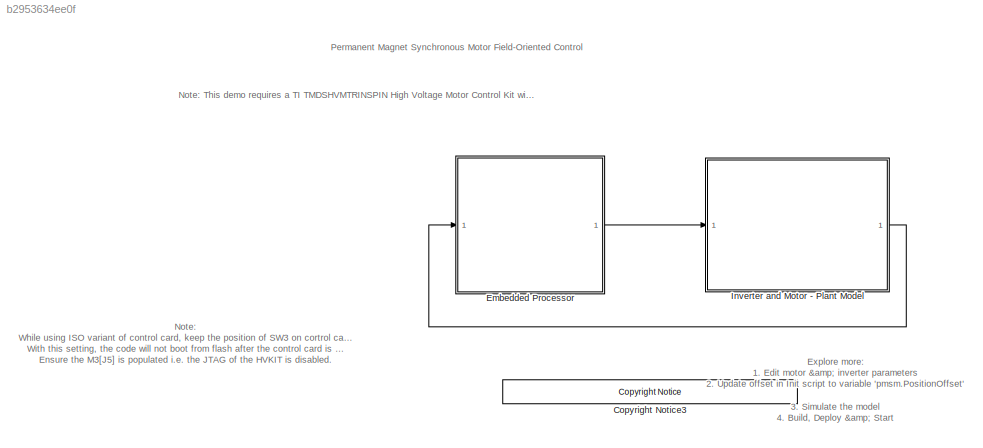
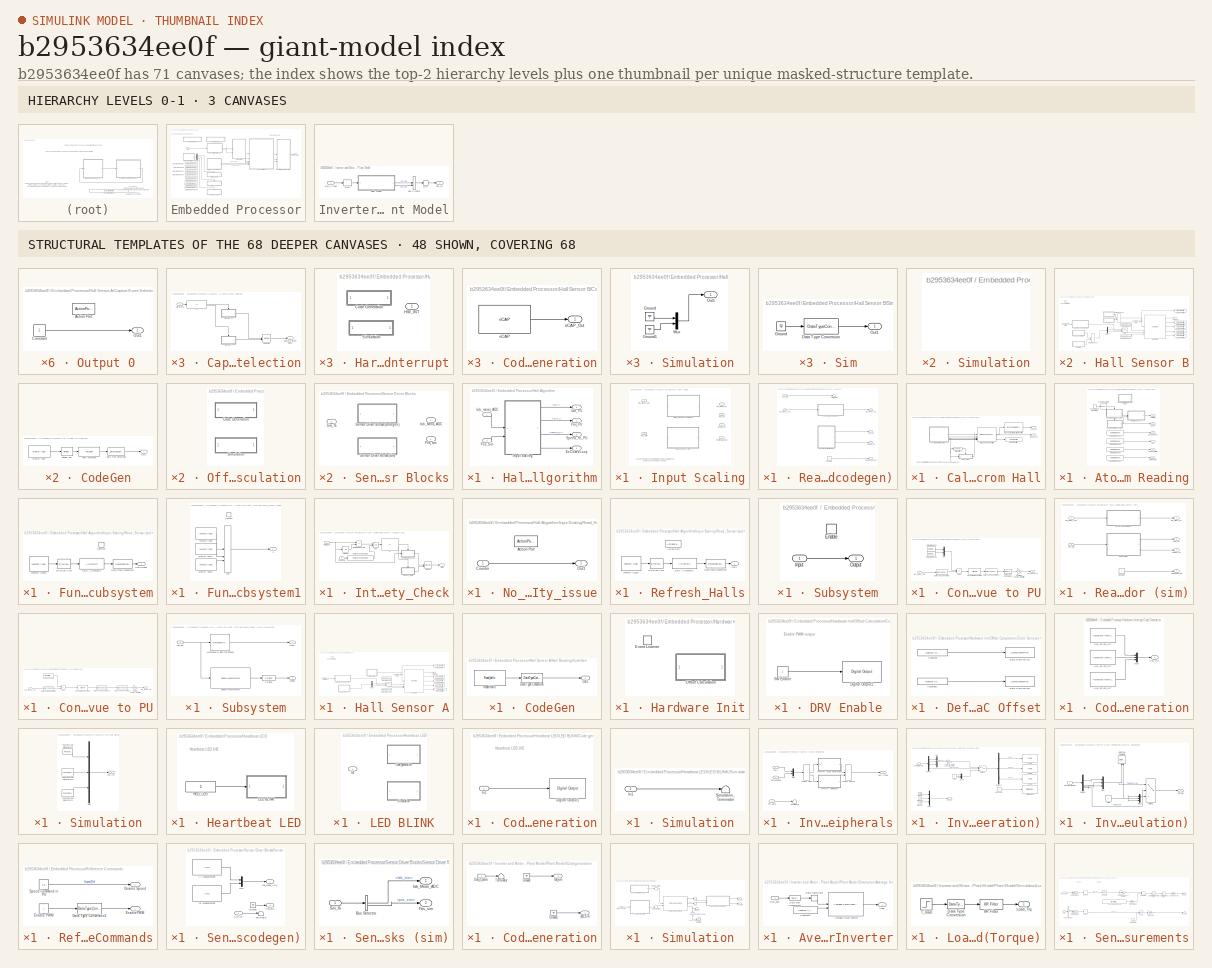
[diagram: thumbnail index - top-2 hierarchy levels (3 canvases) + 48 structural-template representatives of the remaining 68 canvases]
MODEL slx_b2953634ee0f
KIND model
CONFIG AbsTol = auto
CONFIG EnableMultiTasking = on
CONFIG FixedStep = auto
CONFIG InitFcn = mcb_pmsm_foc_hall_hvkit_f28069m_data;
CONFIG MaxStep = auto
CONFIG MinStep = auto
CONFIG RelTol = 1e-3
CONFIG SampleTimeConstraint = Unconstrained
CONFIG SolverName = FixedStepDiscrete
CONFIG StartTime = 0.0
CONFIG StopTime = 8
BLOCK [Reference] <copyright redacted>
  SourceBlock = demo_controls/<copyright redacted>
  SourceType = <copyright redacted>
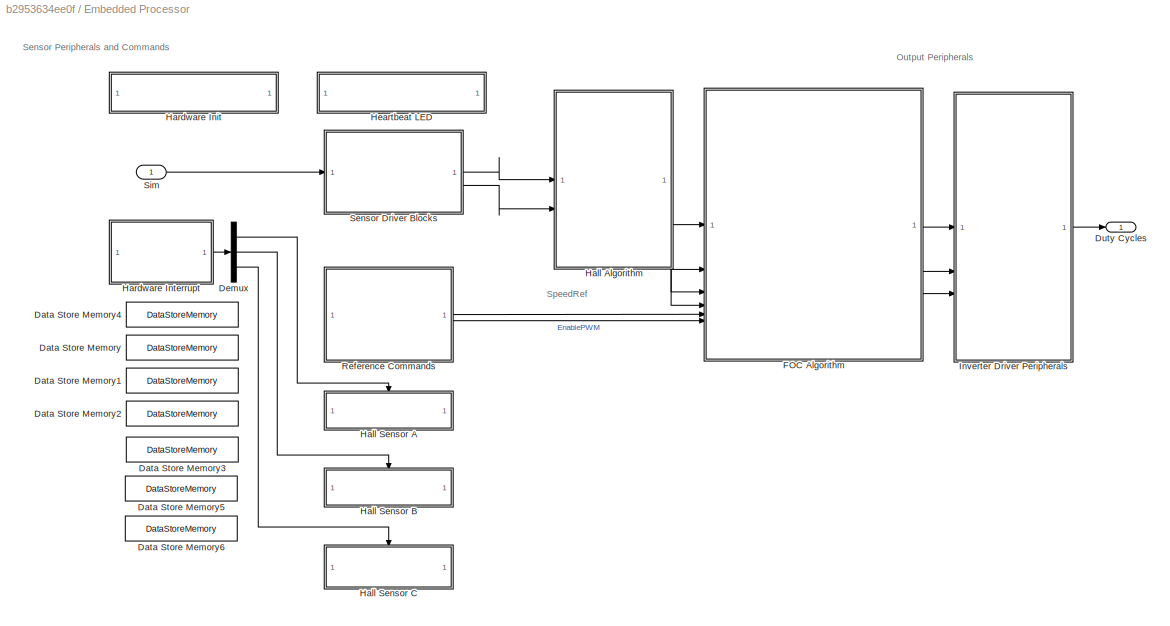
BLOCK [SubSystem] Embedded Processor
BLOCK [DataStoreMemory] Embedded Processor/Data Store Memory
  DataStoreName = HallStateChangeFlag
  ShowAdditionalParam = off
BLOCK [DataStoreMemory] Embedded Processor/Data Store Memory1
  DataStoreName = GlobalSpeedCount
  ShowAdditionalParam = off
BLOCK [DataStoreMemory] Embedded Processor/Data Store Memory2
  DataStoreName = GlobalSpeedValidity
  ShowAdditionalParam = off
BLOCK [DataStoreMemory] Embedded Processor/Data Store Memory3
  DataStoreName = GlobalDirection
  InitialValue = 1
  ShowAdditionalParam = off
BLOCK [DataStoreMemory] Embedded Processor/Data Store Memory4
  DataStoreName = GlobalHallState
  OutDataTypeStr = uint32
  ShowAdditionalParam = off
BLOCK [DataStoreMemory] Embedded Processor/Data Store Memory5
  DataStoreName = IaOffset
  InitialValue = inverter.CtSensAOffset
  ShowAdditionalParam = off
BLOCK [DataStoreMemory] Embedded Processor/Data Store Memory6
  DataStoreName = IbOffset
  InitialValue = inverter.CtSensBOffset
  ShowAdditionalParam = off
BLOCK [Demux] Embedded Processor/Demux
  Outputs = 3
BLOCK [Outport] Embedded Processor/Duty Cycles
BLOCK [SubSystem] Embedded Processor/FOC Algorithm
  ReferencedSubsystem = foc_hall_algorithm
BLOCK [SubSystem] Embedded Processor/Hall Algorithm
  RTWMemSecFuncExecute = code_ramfuncs
  RTWSystemCode = Nonreusable function
  TreatAsAtomicUnit = on
BLOCK [Outport] Embedded Processor/Hall Algorithm/EnClosedLoop
  Port = 4
BLOCK [Outport] Embedded Processor/Hall Algorithm/Iab_PU
BLOCK [Inport] Embedded Processor/Hall Algorithm/Iab_meas_ADC
BLOCK [SubSystem] Embedded Processor/Hall Algorithm/Input Scaling
  PropagateVariantConditions = on
  Variant = on
  VariantControl = Variant1
  VariantControlMode = sim codegen switching
BLOCK [Outport] Embedded Processor/Hall Algorithm/Input Scaling/EnClosedLoop
  Port = 4
  VectorParamsAs1DForOutWhenUnconnected = off
BLOCK [Outport] Embedded Processor/Hall Algorithm/Input Scaling/Iab_Meas_PU
  VectorParamsAs1DForOutWhenUnconnected = off
BLOCK [Inport] Embedded Processor/Hall Algorithm/Input Scaling/Iab_meas_ADC
BLOCK [Outport] Embedded Processor/Hall Algorithm/Input Scaling/Pos_PU
  Port = 2
  VectorParamsAs1DForOutWhenUnconnected = off
BLOCK [Inport] Embedded Processor/Hall Algorithm/Input Scaling/Pos_Sim
  Port = 2
BLOCK [SubSystem] Embedded Processor/Hall Algorithm/Input Scaling/Read_Sensor (codegen)
  VariantControl = (codegen)
BLOCK [SubSystem] Embedded Processor/Hall Algorithm/Input Scaling/Read_Sensor (codegen)/Calculate Position from Hall
BLOCK [SubSystem] Embedded Processor/Hall Algorithm/Input Scaling/Read_Sensor (codegen)/Calculate Position from Hall/Atomic Hall Reading
  TreatAsAtomicUnit = on
BLOCK [Outport] Embedded Processor/Hall Algorithm/Input Scaling/Read_Sensor (codegen)/Calculate Position from Hall/Atomic Hall Reading/Count
  Port = 2
BLOCK [DataStoreRead] Embedded Processor/Hall Algorithm/Input Scaling/Read_Sensor (codegen)/Calculate Position from Hall/Atomic Hall Reading/Data Store Read2
  DataStoreName = GlobalSpeedCount
  IndexOptions = Index vector (dialog)
  Indices = 1
  OutputSizes = 1
BLOCK [DataStoreRead] Embedded Processor/Hall Algorithm/Input Scaling/Read_Sensor (codegen)/Calculate Position from Hall/Atomic Hall Reading/Data Store Read3
  DataStoreName = GlobalDirection
  IndexOptions = Index vector (dialog)
  Indices = 1
  OutputSizes = 1
BLOCK [DataStoreRead] Embedded Processor/Hall Algorithm/Input Scaling/Read_Sensor (codegen)/Calculate Position from Hall/Atomic Hall Reading/Data Store Read4
  DataStoreName = GlobalSpeedValidity
  IndexOptions = Index vector (dialog)
  Indices = 1
  OutputSizes = 1
BLOCK [DataStoreRead] Embedded Processor/Hall Algorithm/Input Scaling/Read_Sensor (codegen)/Calculate Position from Hall/Atomic Hall Reading/Data Store Read5
  DataStoreName = HallStateChangeFlag
  IndexOptions = Index vector (dialog)
  Indices = 1
  OutputSizes = 1
  Priority = 1
BLOCK [Outport] Embedded Processor/Hall Algorithm/Input Scaling/Read_Sensor (codegen)/Calculate Position from Hall/Atomic Hall Reading/Dir
  Port = 4
BLOCK [SubSystem] Embedded Processor/Hall Algorithm/Input Scaling/Read_Sensor (codegen)/Calculate Position from Hall/Atomic Hall Reading/Disable Interrupts for Atomic Read
  CopyFcn = cccopyfcn(gcb)
  OpenFcn = ccopenfcn('System Outputs Function')
BLOCK [FunctionCallGenerator] Embedded Processor/Hall Algorithm/Input Scaling/Read_Sensor (codegen)/Calculate Position from Hall/Atomic Hall Reading/Function-Call Generator
  SampleTime = -1
BLOCK [FunctionCallSplit] Embedded Processor/Hall Algorithm/Input Scaling/Read_Sensor (codegen)/Calculate Position from Hall/Atomic Hall Reading/Function-Call Split
  NumOutputPorts = 2
  OutputPortLayout = default
BLOCK [SubSystem] Embedded Processor/Hall Algorithm/Input Scaling/Read_Sensor (codegen)/Calculate Position from Hall/Atomic Hall Reading/Function-Call Subsystem
  TreatAsAtomicUnit = on
BLOCK [Reference] Embedded Processor/Hall Algorithm/Input Scaling/Read_Sensor (codegen)/Calculate Position from Hall/Atomic Hall Reading/Function-Call Subsystem/Bitwise AND  REF=simulink/Logic and Bit
Operations/Bitwise
Operator
  SourceBlock = simulink/Logic and Bit\nOperations/Bitwise\nOperator
  SourceType = Bitwise Operator
BLOCK [DataTypeConversion] Embedded Processor/Hall Algorithm/Input Scaling/Read_Sensor (codegen)/Calculate Position from Hall/Atomic Hall Reading/Function-Call Subsystem/Data Type Conversion
  ConvertRealWorld = Stored Integer (SI)
  OutDataTypeStr = uint32
  RndMeth = Floor
  SaturateOnIntegerOverflow = off
BLOCK [Outport] Embedded Processor/Hall Algorithm/Input Scaling/Read_Sensor (codegen)/Calculate Position from Hall/Atomic Hall Reading/Function-Call Subsystem/HallSignal
BLOCK [Reference] Embedded Processor/Hall Algorithm/Input Scaling/Read_Sensor (codegen)/Calculate Position from Hall/Atomic Hall Reading/Function-Call Subsystem/Memory Copy3  REF=svdutilitieslib/Memory Copy
  SourceBlock = svdutilitieslib/Memory Copy
  SourceType = Memory Copy
BLOCK [ArithShift] Embedded Processor/Hall Algorithm/Input Scaling/Read_Sensor (codegen)/Calculate Position from Hall/Atomic Hall Reading/Function-Call Subsystem/Shift Arithmetic
  BitShiftNumber = 24
  InputPortMap = u0
BLOCK [TriggerPort] Embedded Processor/Hall Algorithm/Input Scaling/Read_Sensor (codegen)/Calculate Position from Hall/Atomic Hall Reading/Function-Call Subsystem/function
  StatesWhenEnabling = held
  TriggerType = function-call
  VariantControl = Variant
BLOCK [SubSystem] Embedded Processor/Hall Algorithm/Input Scaling/Read_Sensor (codegen)/Calculate Position from Hall/Atomic Hall Reading/Function-Call Subsystem1
  TreatAsAtomicUnit = on
BLOCK [Reference] Embedded Processor/Hall Algorithm/Input Scaling/Read_Sensor (codegen)/Calculate Position from Hall/Atomic Hall Reading/Function-Call Subsystem1/Memory Copy  REF=idelinklib_common/Memory Copy
  SourceBlock = idelinklib_common/Memory Copy
  SourceType = Memory Copy
BLOCK [Reference] Embedded Processor/Hall Algorithm/Input Scaling/Read_Sensor (codegen)/Calculate Position from Hall/Atomic Hall Reading/Function-Call Subsystem1/Memory Copy1  REF=idelinklib_common/Memory Copy
  SourceBlock = idelinklib_common/Memory Copy
  SourceType = Memory Copy
BLOCK [Reference] Embedded Processor/Hall Algorithm/Input Scaling/Read_Sensor (codegen)/Calculate Position from Hall/Atomic Hall Reading/Function-Call Subsystem1/Memory Copy2  REF=idelinklib_common/Memory Copy
  SourceBlock = idelinklib_common/Memory Copy
  SourceType = Memory Copy
BLOCK [MinMax] Embedded Processor/Hall Algorithm/Input Scaling/Read_Sensor (codegen)/Calculate Position from Hall/Atomic Hall Reading/Function-Call Subsystem1/Min
  Inputs = 3
BLOCK [TriggerPort] Embedded Processor/Hall Algorithm/Input Scaling/Read_Sensor (codegen)/Calculate Position from Hall/Atomic Hall Reading/Function-Call Subsystem1/function
  StatesWhenEnabling = held
  TriggerType = function-call
  VariantControl = Variant
BLOCK [Outport] Embedded Processor/Hall Algorithm/Input Scaling/Read_Sensor (codegen)/Calculate Position from Hall/Atomic Hall Reading/Function-Call Subsystem1/u
BLOCK [Outport] Embedded Processor/Hall Algorithm/Input Scaling/Read_Sensor (codegen)/Calculate Position from Hall/Atomic Hall Reading/HallState
BLOCK [Outport] Embedded Processor/Hall Algorithm/Input Scaling/Read_Sensor (codegen)/Calculate Position from Hall/Atomic Hall Reading/Hallchange
  Port = 6
BLOCK [SubSystem] Embedded Processor/Hall Algorithm/Input Scaling/Read_Sensor (codegen)/Calculate Position from Hall/Atomic Hall Reading/Integrity_Check
BLOCK [Reference] Embedded Processor/Hall Algorithm/Input Scaling/Read_Sensor (codegen)/Calculate Position from Hall/Atomic Hall Reading/Integrity_Check/Compare To Constant  REF=simulink/Logic and Bit
Operations/Compare
To Constant
  SourceBlock = simulink/Logic and Bit\nOperations/Compare\nTo Constant
  SourceType = Compare To Constant
BLOCK [Inport] Embedded Processor/Hall Algorithm/Input Scaling/Read_Sensor (codegen)/Calculate Position from Hall/Atomic Hall Reading/Integrity_Check/CounterIn
  Port = 2
BLOCK [Inport] Embedded Processor/Hall Algorithm/Input Scaling/Read_Sensor (codegen)/Calculate Position from Hall/Atomic Hall Reading/Integrity_Check/HallSignal
BLOCK [Outport] Embedded Processor/Hall Algorithm/Input Scaling/Read_Sensor (codegen)/Calculate Position from Hall/Atomic Hall Reading/Integrity_Check/Halls
BLOCK [If] Embedded Processor/Hall Algorithm/Input Scaling/Read_Sensor (codegen)/Calculate Position from Hall/Atomic Hall Reading/Integrity_Check/If
  IfExpression = u1 == 0
BLOCK [Merge] Embedded Processor/Hall Algorithm/Input Scaling/Read_Sensor (codegen)/Calculate Position from Hall/Atomic Hall Reading/Integrity_Check/Merge
BLOCK [Logic] Embedded Processor/Hall Algorithm/Input Scaling/Read_Sensor (codegen)/Calculate Position from Hall/Atomic Hall Reading/Integrity_Check/NOT
  AllPortsSameDT = off
  IconShape = distinctive
  OutDataTypeStr = boolean
BLOCK [SubSystem] Embedded Processor/Hall Algorithm/Input Scaling/Read_Sensor (codegen)/Calculate Position from Hall/Atomic Hall Reading/Integrity_Check/No_Integrity_issue
  TreatAsAtomicUnit = on
BLOCK [ActionPort] Embedded Processor/Hall Algorithm/Input Scaling/Read_Sensor (codegen)/Calculate Position from Hall/Atomic Hall Reading/Integrity_Check/No_Integrity_issue/Action Port
  ActionPortLabel = if(u1 == 0)
BLOCK [Inport] Embedded Processor/Hall Algorithm/Input Scaling/Read_Sensor (codegen)/Calculate Position from Hall/Atomic Hall Reading/Integrity_Check/No_Integrity_issue/Counter
BLOCK [Outport] Embedded Processor/Hall Algorithm/Input Scaling/Read_Sensor (codegen)/Calculate Position from Hall/Atomic Hall Reading/Integrity_Check/No_Integrity_issue/Out1
BLOCK [SubSystem] Embedded Processor/Hall Algorithm/Input Scaling/Read_Sensor (codegen)/Calculate Position from Hall/Atomic Hall Reading/Integrity_Check/Refresh_Halls
  TreatAsAtomicUnit = on
BLOCK [ActionPort] Embedded Processor/Hall Algorithm/Input Scaling/Read_Sensor (codegen)/Calculate Position from Hall/Atomic Hall Reading/Integrity_Check/Refresh_Halls/Action Port
  ActionPortLabel = else
BLOCK [Reference] Embedded Processor/Hall Algorithm/Input Scaling/Read_Sensor (codegen)/Calculate Position from Hall/Atomic Hall Reading/Integrity_Check/Refresh_Halls/Bitwise AND  REF=simulink/Logic and Bit
Operations/Bitwise
Operator
  SourceBlock = simulink/Logic and Bit\nOperations/Bitwise\nOperator
  SourceType = Bitwise Operator
BLOCK [DataTypeConversion] Embedded Processor/Hall Algorithm/Input Scaling/Read_Sensor (codegen)/Calculate Position from Hall/Atomic Hall Reading/Integrity_Check/Refresh_Halls/Data Type Conversion
  ConvertRealWorld = Stored Integer (SI)
  OutDataTypeStr = uint32
  RndMeth = Floor
  SaturateOnIntegerOverflow = off
BLOCK [Reference] Embedded Processor/Hall Algorithm/Input Scaling/Read_Sensor (codegen)/Calculate Position from Hall/Atomic Hall Reading/Integrity_Check/Refresh_Halls/Memory Copy3  REF=svdutilitieslib/Memory Copy
  SourceBlock = svdutilitieslib/Memory Copy
  SourceType = Memory Copy
BLOCK [Outport] Embedded Processor/Hall Algorithm/Input Scaling/Read_Sensor (codegen)/Calculate Position from Hall/Atomic Hall Reading/Integrity_Check/Refresh_Halls/Out1
BLOCK [ArithShift] Embedded Processor/Hall Algorithm/Input Scaling/Read_Sensor (codegen)/Calculate Position from Hall/Atomic Hall Reading/Integrity_Check/Refresh_Halls/Shift Arithmetic
  BitShiftNumber = 24
  InputPortMap = u0
BLOCK [RelationalOperator] Embedded Processor/Hall Algorithm/Input Scaling/Read_Sensor (codegen)/Calculate Position from Hall/Atomic Hall Reading/Integrity_Check/Relational Operator
  InputSameDT = off
  Operator = ==
  OutDataTypeStr = boolean
  RndMeth = Simplest
BLOCK [UnitDelay] Embedded Processor/Hall Algorithm/Input Scaling/Read_Sensor (codegen)/Calculate Position from Hall/Atomic Hall Reading/Integrity_Check/Unit Delay
  HasFrameUpgradeWarning = on
  SampleTime = -1
BLOCK [Outport] Embedded Processor/Hall Algorithm/Input Scaling/Read_Sensor (codegen)/Calculate Position from Hall/Atomic Hall Reading/SpeedCount
  Port = 3
BLOCK [Outport] Embedded Processor/Hall Algorithm/Input Scaling/Read_Sensor (codegen)/Calculate Position from Hall/Atomic Hall Reading/SpeedValidity
  Port = 5
BLOCK [DataStoreWrite] Embedded Processor/Hall Algorithm/Input Scaling/Read_Sensor (codegen)/Calculate Position from Hall/Data Store Write2
  DataStoreName = HallStateChangeFlag
  IndexOptions = Index vector (dialog)
  Indices = 1
  OutputSizes = 1
  Priority = 2
BLOCK [Reference] Embedded Processor/Hall Algorithm/Input Scaling/Read_Sensor (codegen)/Calculate Position from Hall/Glitch Filter  REF=simulink/Logic and Bit
Operations/Compare
To Constant
  SourceBlock = simulink/Logic and Bit\nOperations/Compare\nTo Constant
  SourceType = Compare To Constant
BLOCK [Reference] Embedded Processor/Hall Algorithm/Input Scaling/Read_Sensor (codegen)/Calculate Position from Hall/Hall Speed and Position  REF=mcbpositiondecoderlib/Hall Speed and Position
  SourceBlock = mcbpositiondecoderlib/Hall Speed and Position
  SourceType = Hall Speed and Position
BLOCK [Reference] Embedded Processor/Hall Algorithm/Input Scaling/Read_Sensor (codegen)/Calculate Position from Hall/Mechanical to Electrical Position  REF=mcbpositiondecoderlib/Mechanical to Electrical Position
  SourceBlock = mcbpositiondecoderlib/Mechanical to Electrical Position
  SourceType = Mechanical to Electrical Position
BLOCK [Outport] Embedded Processor/Hall Algorithm/Input Scaling/Read_Sensor (codegen)/Calculate Position from Hall/Pos_PU
  InitialOutput = 0
  VectorParamsAs1DForOutWhenUnconnected = off
BLOCK [Outport] Embedded Processor/Hall Algorithm/Input Scaling/Read_Sensor (codegen)/Calculate Position from Hall/Speed_PU
  InitialOutput = 0
  Port = 2
  VectorParamsAs1DForOutWhenUnconnected = off
BLOCK [SubSystem] Embedded Processor/Hall Algorithm/Input Scaling/Read_Sensor (codegen)/Calculate Position from Hall/Subsystem
BLOCK [EnablePort] Embedded Processor/Hall Algorithm/Input Scaling/Read_Sensor (codegen)/Calculate Position from Hall/Subsystem/Enable
BLOCK [Inport] Embedded Processor/Hall Algorithm/Input Scaling/Read_Sensor (codegen)/Calculate Position from Hall/Subsystem/Input
BLOCK [Outport] Embedded Processor/Hall Algorithm/Input Scaling/Read_Sensor (codegen)/Calculate Position from Hall/Subsystem/Output
BLOCK [Constant] Embedded Processor/Hall Algorithm/Input Scaling/Read_Sensor (codegen)/Constant
  OutDataTypeStr = boolean
BLOCK [SubSystem] Embedded Processor/Hall Algorithm/Input Scaling/Read_Sensor (codegen)/Convert ADC value to PU
BLOCK [Sum] Embedded Processor/Hall Algorithm/Input Scaling/Read_Sensor (codegen)/Convert ADC value to PU/Add
  IconShape = rectangular
  Inputs = -+
BLOCK [DataStoreRead] Embedded Processor/Hall Algorithm/Input Scaling/Read_Sensor (codegen)/Convert ADC value to PU/Data Store Read
  DataStoreName = IaOffset
  IndexOptions = Index vector (dialog)
  Indices = 1
  OutputSizes = 1
BLOCK [DataStoreRead] Embedded Processor/Hall Algorithm/Input Scaling/Read_Sensor (codegen)/Convert ADC value to PU/Data Store Read1
  DataStoreName = IbOffset
  IndexOptions = Index vector (dialog)
  Indices = 1
  OutputSizes = 1
BLOCK [DataTypeConversion] Embedded Processor/Hall Algorithm/Input Scaling/Read_Sensor (codegen)/Convert ADC value to PU/Data Type Conversion
  ConvertRealWorld = Stored Integer (SI)
  OutDataTypeStr = int32
  RndMeth = Floor
  SaturateOnIntegerOverflow = off
BLOCK [DataTypeConversion] Embedded Processor/Hall Algorithm/Input Scaling/Read_Sensor (codegen)/Convert ADC value to PU/Data Type Conversion1
  OutDataTypeStr = dataType
  RndMeth = Floor
  SaturateOnIntegerOverflow = off
BLOCK [DataTypeConversion] Embedded Processor/Hall Algorithm/Input Scaling/Read_Sensor (codegen)/Convert ADC value to PU/Data Type Conversion3
  ConvertRealWorld = Stored Integer (SI)
  OutDataTypeStr = fixdt(1,32,17)
  RndMeth = Simplest
  SaturateOnIntegerOverflow = off
BLOCK [Inport] Embedded Processor/Hall Algorithm/Input Scaling/Read_Sensor (codegen)/Convert ADC value to PU/Iab_meas_ADC
BLOCK [Outport] Embedded Processor/Hall Algorithm/Input Scaling/Read_Sensor (codegen)/Convert ADC value to PU/Iab_meas_PU
  InitialOutput = 0
  VectorParamsAs1DForOutWhenUnconnected = off
BLOCK [Gain] Embedded Processor/Hall Algorithm/Input Scaling/Read_Sensor (codegen)/Convert ADC value to PU/Inverting // Non-inverting Current measurement amplifier
  Gain = inverter.invertingAmp
  OutDataTypeStr = Inherit: Same as input
  RndMeth = Simplest
BLOCK [Mux] Embedded Processor/Hall Algorithm/Input Scaling/Read_Sensor (codegen)/Convert ADC value to PU/Mux
  DisplayOption = bar
  Inputs = 2
BLOCK [ArithShift] Embedded Processor/Hall Algorithm/Input Scaling/Read_Sensor (codegen)/Convert ADC value to PU/Q17 per unit conversion
  BitShiftNumber = -6
  InputPortMap = u0
BLOCK [Outport] Embedded Processor/Hall Algorithm/Input Scaling/Read_Sensor (codegen)/EnClosedLoop
  Port = 4
  VectorParamsAs1DForOutWhenUnconnected = off
BLOCK [Outport] Embedded Processor/Hall Algorithm/Input Scaling/Read_Sensor (codegen)/Iab_Meas_PU
  VectorParamsAs1DForOutWhenUnconnected = off
BLOCK [Inport] Embedded Processor/Hall Algorithm/Input Scaling/Read_Sensor (codegen)/Iab_meas_ADC
  OutDataTypeStr = uint16
BLOCK [Outport] Embedded Processor/Hall Algorithm/Input Scaling/Read_Sensor (codegen)/Pos_PU
  Port = 2
  VectorParamsAs1DForOutWhenUnconnected = off
BLOCK [Inport] Embedded Processor/Hall Algorithm/Input Scaling/Read_Sensor (codegen)/Pos_Sim
  OutDataTypeStr = uint16
  Port = 2
BLOCK [Outport] Embedded Processor/Hall Algorithm/Input Scaling/Read_Sensor (codegen)/Speed_PU
  Port = 3
  VectorParamsAs1DForOutWhenUnconnected = off
BLOCK [Terminator] Embedded Processor/Hall Algorithm/Input Scaling/Read_Sensor (codegen)/Terminator1
BLOCK [SubSystem] Embedded Processor/Hall Algorithm/Input Scaling/Read_Sensor (sim)
  VariantControl = (sim)
BLOCK [Constant] Embedded Processor/Hall Algorithm/Input Scaling/Read_Sensor (sim)/Constant
  OutDataTypeStr = boolean
BLOCK [SubSystem] Embedded Processor/Hall Algorithm/Input Scaling/Read_Sensor (sim)/Convert ADC value to PU
BLOCK [Constant] Embedded Processor/Hall Algorithm/Input Scaling/Read_Sensor (sim)/Convert ADC value to PU/0A in ADC counts
  OutDataTypeStr = int32
  SampleTime = -1
  Value = [inverter.CtSensAOffset inverter.CtSensBOffset]
BLOCK [Sum] Embedded Processor/Hall Algorithm/Input Scaling/Read_Sensor (sim)/Convert ADC value to PU/Add
  IconShape = rectangular
  Inputs = -+
BLOCK [DataTypeConversion] Embedded Processor/Hall Algorithm/Input Scaling/Read_Sensor (sim)/Convert ADC value to PU/Data Type Conversion
  ConvertRealWorld = Stored Integer (SI)
  OutDataTypeStr = int32
  RndMeth = Floor
  SaturateOnIntegerOverflow = off
BLOCK [DataTypeConversion] Embedded Processor/Hall Algorithm/Input Scaling/Read_Sensor (sim)/Convert ADC value to PU/Data Type Conversion1
  OutDataTypeStr = dataType
  RndMeth = Floor
  SaturateOnIntegerOverflow = off
BLOCK [DataTypeConversion] Embedded Processor/Hall Algorithm/Input Scaling/Read_Sensor (sim)/Convert ADC value to PU/Data Type Conversion3
  ConvertRealWorld = Stored Integer (SI)
  OutDataTypeStr = fixdt(1,32,17)
  RndMeth = Simplest
  SaturateOnIntegerOverflow = off
BLOCK [Inport] Embedded Processor/Hall Algorithm/Input Scaling/Read_Sensor (sim)/Convert ADC value to PU/Iab_meas_ADC
BLOCK [Outport] Embedded Processor/Hall Algorithm/Input Scaling/Read_Sensor (sim)/Convert ADC value to PU/Iab_meas_PU
  InitialOutput = 0
  VectorParamsAs1DForOutWhenUnconnected = off
BLOCK [Gain] Embedded Processor/Hall Algorithm/Input Scaling/Read_Sensor (sim)/Convert ADC value to PU/Inverting // Non-inverting Current measurement amplifier
  Gain = inverter.invertingAmp
  OutDataTypeStr = Inherit: Same as input
  RndMeth = Simplest
BLOCK [ArithShift] Embedded Processor/Hall Algorithm/Input Scaling/Read_Sensor (sim)/Convert ADC value to PU/Q17 per unit conversion
  BitShiftNumber = -6
  InputPortMap = u0
BLOCK [Outport] Embedded Processor/Hall Algorithm/Input Scaling/Read_Sensor (sim)/EnClosedLoop
  Port = 4
  VectorParamsAs1DForOutWhenUnconnected = off
BLOCK [Outport] Embedded Processor/Hall Algorithm/Input Scaling/Read_Sensor (sim)/Iab_Meas_PU
  VectorParamsAs1DForOutWhenUnconnected = off
BLOCK [Inport] Embedded Processor/Hall Algorithm/Input Scaling/Read_Sensor (sim)/Iab_meas_ADC
BLOCK [Outport] Embedded Processor/Hall Algorithm/Input Scaling/Read_Sensor (sim)/Pos_PU
  Port = 2
  VectorParamsAs1DForOutWhenUnconnected = off
BLOCK [Inport] Embedded Processor/Hall Algorithm/Input Scaling/Read_Sensor (sim)/Pos_Sim
  Port = 2
BLOCK [Outport] Embedded Processor/Hall Algorithm/Input Scaling/Read_Sensor (sim)/Speed_PU
  Port = 3
  VectorParamsAs1DForOutWhenUnconnected = off
BLOCK [SubSystem] Embedded Processor/Hall Algorithm/Input Scaling/Read_Sensor (sim)/Subsystem
BLOCK [Reference] Embedded Processor/Hall Algorithm/Input Scaling/Read_Sensor (sim)/Subsystem/IIR Filter  REF=mcbcontrolslib/IIR Filter
  SourceBlock = mcbcontrolslib/IIR Filter
  SourceType = IIR Filter
BLOCK [Reference] Embedded Processor/Hall Algorithm/Input Scaling/Read_Sensor (sim)/Subsystem/Mechanical to Electrical Position  REF=mcbpositiondecoderlib/Mechanical to Electrical Position
  SourceBlock = mcbpositiondecoderlib/Mechanical to Electrical Position
  SourceType = Mechanical to Electrical Position
BLOCK [Inport] Embedded Processor/Hall Algorithm/Input Scaling/Read_Sensor (sim)/Subsystem/Pos_Sim
BLOCK [Outport] Embedded Processor/Hall Algorithm/Input Scaling/Read_Sensor (sim)/Subsystem/Speed
  Port = 2
BLOCK [Reference] Embedded Processor/Hall Algorithm/Input Scaling/Read_Sensor (sim)/Subsystem/Speed Measurement  REF=mcbpositiondecoderlib/Speed Measurement
  SourceBlock = mcbpositiondecoderlib/Speed Measurement
  SourceType = Speed Measurement
BLOCK [Outport] Embedded Processor/Hall Algorithm/Input Scaling/Read_Sensor (sim)/Subsystem/Theta
BLOCK [Outport] Embedded Processor/Hall Algorithm/Input Scaling/Speed_PU
  Port = 3
  VectorParamsAs1DForOutWhenUnconnected = off
BLOCK [Outport] Embedded Processor/Hall Algorithm/Pos_PU
  Port = 2
BLOCK [Inport] Embedded Processor/Hall Algorithm/Pos_Sim
  Port = 2
BLOCK [Outport] Embedded Processor/Hall Algorithm/Speed_fb_PU
  Port = 3
BLOCK [SubSystem] Embedded Processor/Hall Sensor A
BLOCK [SubSystem] Embedded Processor/Hall Sensor A/Capture Event Selection
BLOCK [Outport] Embedded Processor/Hall Sensor A/Capture Event Selection/Capture Event Select
BLOCK [Inport] Embedded Processor/Hall Sensor A/Capture Event Selection/Hall State
BLOCK [If] Embedded Processor/Hall Sensor A/Capture Event Selection/If
  IfExpression = (u1 == 5 | u1 == 3)
BLOCK [Merge] Embedded Processor/Hall Sensor A/Capture Event Selection/Merge
BLOCK [SubSystem] Embedded Processor/Hall Sensor A/Capture Event Selection/Output 0
  TreatAsAtomicUnit = on
BLOCK [ActionPort] Embedded Processor/Hall Sensor A/Capture Event Selection/Output 0/Action Port
  ActionPortLabel = if((u1 == 5 | u1 == 3))
BLOCK [Constant] Embedded Processor/Hall Sensor A/Capture Event Selection/Output 0/Constant
  OutDataTypeStr = boolean
BLOCK [Outport] Embedded Processor/Hall Sensor A/Capture Event Selection/Output 0/Out1
BLOCK [SubSystem] Embedded Processor/Hall Sensor A/Capture Event Selection/Output 1
  TreatAsAtomicUnit = on
BLOCK [ActionPort] Embedded Processor/Hall Sensor A/Capture Event Selection/Output 1/Action Port
  ActionPortLabel = else
BLOCK [Constant] Embedded Processor/Hall Sensor A/Capture Event Selection/Output 1/Constant
  OutDataTypeStr = boolean
  Value = 0
BLOCK [Outport] Embedded Processor/Hall Sensor A/Capture Event Selection/Output 1/Out1
BLOCK [DataStoreRead] Embedded Processor/Hall Sensor A/Data Store Read
  DataStoreName = GlobalHallState
  IndexOptions = Index vector (dialog)
  Indices = 1
  OutputSizes = 1
  Priority = 1
BLOCK [DataStoreRead] Embedded Processor/Hall Sensor A/Data Store Read1
  DataStoreName = GlobalDirection
  IndexOptions = Index vector (dialog)
  Indices = 1
  OutputSizes = 1
BLOCK [DataStoreWrite] Embedded Processor/Hall Sensor A/Data Store Write
  DataStoreName = GlobalSpeedValidity
  IndexOptions = Index vector (dialog)
  Indices = 1
  OutputSizes = 1
BLOCK [DataStoreWrite] Embedded Processor/Hall Sensor A/Data Store Write1
  DataStoreName = GlobalDirection
  IndexOptions = Index vector (dialog)
  Indices = 1
  OutputSizes = 1
BLOCK [DataStoreWrite] Embedded Processor/Hall Sensor A/Data Store Write2
  DataStoreName = HallStateChangeFlag
  IndexOptions = Index vector (dialog)
  Indices = 1
  OutputSizes = 1
BLOCK [DataStoreWrite] Embedded Processor/Hall Sensor A/Data Store Write3
  DataStoreName = GlobalSpeedCount
  IndexOptions = Index vector (dialog)
  Indices = 1
  OutputSizes = 1
BLOCK [DataStoreWrite] Embedded Processor/Hall Sensor A/Data Store Write4
  DataStoreName = GlobalHallState
  IndexOptions = Index vector (dialog)
  Indices = 1
  OutputSizes = 1
  Priority = 2
BLOCK [Demux] Embedded Processor/Hall Sensor A/Demux
  Outputs = 2
BLOCK [SubSystem] Embedded Processor/Hall Sensor A/Ecap Sensor
  Variant = on
  VariantControl = Choice
  VariantControlMode = sim codegen switching
BLOCK [SubSystem] Embedded Processor/Hall Sensor A/Ecap Sensor/Code generation
  VariantControl = (codegen)
BLOCK [Reference] Embedded Processor/Hall Sensor A/Ecap Sensor/Code generation/eCAP  REF=c280xlib/eCAP
  SourceBlock = c280xlib/eCAP
  SourceType = C28x eCAP
BLOCK [Outport] Embedded Processor/Hall Sensor A/Ecap Sensor/Code generation/eCAP_Out
BLOCK [SubSystem] Embedded Processor/Hall Sensor A/Ecap Sensor/Simulation
  VariantControl = (sim)
BLOCK [Ground] Embedded Processor/Hall Sensor A/Ecap Sensor/Simulation/Ground
BLOCK [Ground] Embedded Processor/Hall Sensor A/Ecap Sensor/Simulation/Ground1
BLOCK [Mux] Embedded Processor/Hall Sensor A/Ecap Sensor/Simulation/Mux
  DisplayOption = bar
  Inputs = 2
BLOCK [Outport] Embedded Processor/Hall Sensor A/Ecap Sensor/Simulation/eCAP_Out
BLOCK [Outport] Embedded Processor/Hall Sensor A/Ecap Sensor/eCAP_Out
BLOCK [From] Embedded Processor/Hall Sensor A/From
  GotoTag = HallState
BLOCK [Goto] Embedded Processor/Hall Sensor A/Goto
  GotoTag = HallState
BLOCK [SubSystem] Embedded Processor/Hall Sensor A/Hall Reading
  Variant = on
  VariantControl = Choice
  VariantControlMode = sim codegen switching
BLOCK [SubSystem] Embedded Processor/Hall Sensor A/Hall Reading/CodeGen
  VariantControl = (codegen)
BLOCK [DataTypeConversion] Embedded Processor/Hall Sensor A/Hall Reading/CodeGen/Data Type Conversion
  ConvertRealWorld = Stored Integer (SI)
  OutDataTypeStr = uint32
  RndMeth = Floor
  SaturateOnIntegerOverflow = off
BLOCK [Outport] Embedded Processor/Hall Sensor A/Hall Reading/CodeGen/Out1
BLOCK [Reference] Embedded Processor/Hall Sensor A/Hall Reading/CodeGen/Read Halls  REF=hall_sensor_lib/Read_halls  (lib defined in slx_a0fdfed1b4e3)
  SourceBlock = hall_sensor_lib/Read_halls
  SourceType = Hall sensor reader
BLOCK [Outport] Embedded Processor/Hall Sensor A/Hall Reading/Out1
BLOCK [SubSystem] Embedded Processor/Hall Sensor A/Hall Reading/Sim
  VariantControl = (sim)
BLOCK [DataTypeConversion] Embedded Processor/Hall Sensor A/Hall Reading/Sim/Data Type Conversion
  ConvertRealWorld = Stored Integer (SI)
  OutDataTypeStr = uint32
  RndMeth = Floor
  SaturateOnIntegerOverflow = off
BLOCK [Ground] Embedded Processor/Hall Sensor A/Hall Reading/Sim/Ground
BLOCK [Outport] Embedded Processor/Hall Sensor A/Hall Reading/Sim/Out1
BLOCK [Reference] Embedded Processor/Hall Sensor A/Hall Validity  REF=mcbpositiondecoderlib/Hall Validity
  SourceBlock = mcbpositiondecoderlib/Hall Validity
  SourceType = Hall Validity
BLOCK [Switch] Embedded Processor/Hall Sensor A/Switch
  Criteria = u2 ~= 0
  InputSameDT = off
  SaturateOnIntegerOverflow = off
BLOCK [Terminator] Embedded Processor/Hall Sensor A/Terminator
BLOCK [TriggerPort] Embedded Processor/Hall Sensor A/eCAP1 Interrupt
  StatesWhenEnabling = held
  TriggerType = function-call
  VariantControl = Variant
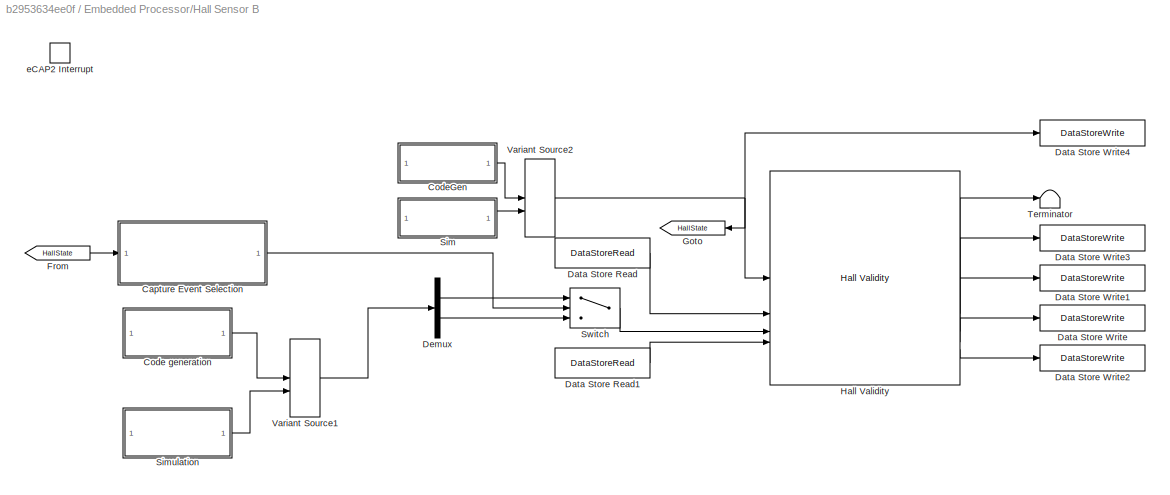
BLOCK [SubSystem] Embedded Processor/Hall Sensor B
BLOCK [SubSystem] Embedded Processor/Hall Sensor B/Capture Event Selection
BLOCK [Outport] Embedded Processor/Hall Sensor B/Capture Event Selection/Capture Event Select
BLOCK [Inport] Embedded Processor/Hall Sensor B/Capture Event Selection/Hall State
BLOCK [If] Embedded Processor/Hall Sensor B/Capture Event Selection/If
  IfExpression = (u1 == 3 | u1 == 6)
BLOCK [Merge] Embedded Processor/Hall Sensor B/Capture Event Selection/Merge
BLOCK [SubSystem] Embedded Processor/Hall Sensor B/Capture Event Selection/Output 0
  TreatAsAtomicUnit = on
BLOCK [ActionPort] Embedded Processor/Hall Sensor B/Capture Event Selection/Output 0/Action Port
  ActionPortLabel = else
BLOCK [Constant] Embedded Processor/Hall Sensor B/Capture Event Selection/Output 0/Constant
  OutDataTypeStr = boolean
  Value = 0
BLOCK [Outport] Embedded Processor/Hall Sensor B/Capture Event Selection/Output 0/Out1
BLOCK [SubSystem] Embedded Processor/Hall Sensor B/Capture Event Selection/Output 1
  TreatAsAtomicUnit = on
BLOCK [ActionPort] Embedded Processor/Hall Sensor B/Capture Event Selection/Output 1/Action Port
  ActionPortLabel = if((u1 == 3 | u1 == 6))
BLOCK [Constant] Embedded Processor/Hall Sensor B/Capture Event Selection/Output 1/Constant
  OutDataTypeStr = boolean
BLOCK [Outport] Embedded Processor/Hall Sensor B/Capture Event Selection/Output 1/Out1
BLOCK [SubSystem] Embedded Processor/Hall Sensor B/Code generation
BLOCK [Reference] Embedded Processor/Hall Sensor B/Code generation/eCAP  REF=c280xlib/eCAP
  SourceBlock = c280xlib/eCAP
  SourceType = C28x eCAP
BLOCK [Outport] Embedded Processor/Hall Sensor B/Code generation/eCAP_Out
BLOCK [SubSystem] Embedded Processor/Hall Sensor B/CodeGen
BLOCK [Reference] Embedded Processor/Hall Sensor B/CodeGen/Bitwise AND  REF=simulink/Logic and Bit
Operations/Bitwise
Operator
  SourceBlock = simulink/Logic and Bit\nOperations/Bitwise\nOperator
  SourceType = Bitwise Operator
BLOCK [DataTypeConversion] Embedded Processor/Hall Sensor B/CodeGen/Data Type Conversion
  ConvertRealWorld = Stored Integer (SI)
  OutDataTypeStr = uint32
  RndMeth = Floor
  SaturateOnIntegerOverflow = off
BLOCK [Reference] Embedded Processor/Hall Sensor B/CodeGen/Memory Copy  REF=idelinklib_common/Memory Copy
  SourceBlock = idelinklib_common/Memory Copy
  SourceType = Memory Copy
BLOCK [Outport] Embedded Processor/Hall Sensor B/CodeGen/Out1
BLOCK [ArithShift] Embedded Processor/Hall Sensor B/CodeGen/Shift Arithmetic
  BitShiftNumber = 24
  InputPortMap = u0
BLOCK [DataStoreRead] Embedded Processor/Hall Sensor B/Data Store Read
  DataStoreName = GlobalHallState
  IndexOptions = Index vector (dialog)
  Indices = 1
  OutputSizes = 1
  Priority = 1
BLOCK [DataStoreRead] Embedded Processor/Hall Sensor B/Data Store Read1
  DataStoreName = GlobalDirection
  IndexOptions = Index vector (dialog)
  Indices = 1
  OutputSizes = 1
BLOCK [DataStoreWrite] Embedded Processor/Hall Sensor B/Data Store Write
  DataStoreName = GlobalSpeedValidity
  IndexOptions = Index vector (dialog)
  Indices = 1
  OutputSizes = 1
BLOCK [DataStoreWrite] Embedded Processor/Hall Sensor B/Data Store Write1
  DataStoreName = GlobalDirection
  IndexOptions = Index vector (dialog)
  Indices = 1
  OutputSizes = 1
BLOCK [DataStoreWrite] Embedded Processor/Hall Sensor B/Data Store Write2
  DataStoreName = HallStateChangeFlag
  IndexOptions = Index vector (dialog)
  Indices = 1
  OutputSizes = 1
BLOCK [DataStoreWrite] Embedded Processor/Hall Sensor B/Data Store Write3
  DataStoreName = GlobalSpeedCount
  IndexOptions = Index vector (dialog)
  Indices = 1
  OutputSizes = 1
BLOCK [DataStoreWrite] Embedded Processor/Hall Sensor B/Data Store Write4
  DataStoreName = GlobalHallState
  IndexOptions = Index vector (dialog)
  Indices = 1
  OutputSizes = 1
  Priority = 2
BLOCK [Demux] Embedded Processor/Hall Sensor B/Demux
  Outputs = 2
BLOCK [From] Embedded Processor/Hall Sensor B/From
  GotoTag = HallState
BLOCK [Goto] Embedded Processor/Hall Sensor B/Goto
  GotoTag = HallState
BLOCK [Reference] Embedded Processor/Hall Sensor B/Hall Validity  REF=mcbpositiondecoderlib/Hall Validity
  SourceBlock = mcbpositiondecoderlib/Hall Validity
  SourceType = Hall Validity
BLOCK [SubSystem] Embedded Processor/Hall Sensor B/Sim
BLOCK [DataTypeConversion] Embedded Processor/Hall Sensor B/Sim/Data Type Conversion
  ConvertRealWorld = Stored Integer (SI)
  OutDataTypeStr = uint32
  RndMeth = Floor
  SaturateOnIntegerOverflow = off
BLOCK [Ground] Embedded Processor/Hall Sensor B/Sim/Ground
BLOCK [Outport] Embedded Processor/Hall Sensor B/Sim/Out1
BLOCK [SubSystem] Embedded Processor/Hall Sensor B/Simulation
BLOCK [Ground] Embedded Processor/Hall Sensor B/Simulation/Ground
BLOCK [Ground] Embedded Processor/Hall Sensor B/Simulation/Ground1
BLOCK [Mux] Embedded Processor/Hall Sensor B/Simulation/Mux
  DisplayOption = bar
  Inputs = 2
BLOCK [Outport] Embedded Processor/Hall Sensor B/Simulation/Out1
BLOCK [Switch] Embedded Processor/Hall Sensor B/Switch
  Criteria = u2 ~= 0
  InputSameDT = off
  SaturateOnIntegerOverflow = off
  Threshold = 3
BLOCK [Terminator] Embedded Processor/Hall Sensor B/Terminator
BLOCK [VariantSource] Embedded Processor/Hall Sensor B/Variant Source1
  VariantControlMode = sim codegen switching
BLOCK [VariantSource] Embedded Processor/Hall Sensor B/Variant Source2
  VariantControlMode = sim codegen switching
BLOCK [TriggerPort] Embedded Processor/Hall Sensor B/eCAP2 Interrupt
  StatesWhenEnabling = held
  TriggerType = function-call
  VariantControl = Variant
BLOCK [SubSystem] Embedded Processor/Hall Sensor C
BLOCK [SubSystem] Embedded Processor/Hall Sensor C/Capture Event Selection
BLOCK [Outport] Embedded Processor/Hall Sensor C/Capture Event Selection/Capture Event Select
BLOCK [Inport] Embedded Processor/Hall Sensor C/Capture Event Selection/Hall State
BLOCK [If] Embedded Processor/Hall Sensor C/Capture Event Selection/If
  IfExpression = (u1 == 5 | u1 == 6)
BLOCK [Merge] Embedded Processor/Hall Sensor C/Capture Event Selection/Merge
BLOCK [SubSystem] Embedded Processor/Hall Sensor C/Capture Event Selection/Output 0
  TreatAsAtomicUnit = on
BLOCK [ActionPort] Embedded Processor/Hall Sensor C/Capture Event Selection/Output 0/Action Port
  ActionPortLabel = else
BLOCK [Constant] Embedded Processor/Hall Sensor C/Capture Event Selection/Output 0/Constant
  OutDataTypeStr = boolean
  Value = 0
BLOCK [Outport] Embedded Processor/Hall Sensor C/Capture Event Selection/Output 0/Out1
BLOCK [SubSystem] Embedded Processor/Hall Sensor C/Capture Event Selection/Output 1
  TreatAsAtomicUnit = on
BLOCK [ActionPort] Embedded Processor/Hall Sensor C/Capture Event Selection/Output 1/Action Port
  ActionPortLabel = if((u1 == 5 | u1 == 6))
BLOCK [Constant] Embedded Processor/Hall Sensor C/Capture Event Selection/Output 1/Constant
  OutDataTypeStr = boolean
BLOCK [Outport] Embedded Processor/Hall Sensor C/Capture Event Selection/Output 1/Out1
BLOCK [SubSystem] Embedded Processor/Hall Sensor C/Code generation
BLOCK [Reference] Embedded Processor/Hall Sensor C/Code generation/eCAP  REF=c280xlib/eCAP
  SourceBlock = c280xlib/eCAP
  SourceType = C28x eCAP
BLOCK [Outport] Embedded Processor/Hall Sensor C/Code generation/eCAP_Out
BLOCK [SubSystem] Embedded Processor/Hall Sensor C/CodeGen
BLOCK [Reference] Embedded Processor/Hall Sensor C/CodeGen/Bitwise AND  REF=simulink/Logic and Bit
Operations/Bitwise
Operator
  SourceBlock = simulink/Logic and Bit\nOperations/Bitwise\nOperator
  SourceType = Bitwise Operator
BLOCK [DataTypeConversion] Embedded Processor/Hall Sensor C/CodeGen/Data Type Conversion
  ConvertRealWorld = Stored Integer (SI)
  OutDataTypeStr = uint32
  RndMeth = Floor
  SaturateOnIntegerOverflow = off
BLOCK [Reference] Embedded Processor/Hall Sensor C/CodeGen/Memory Copy  REF=idelinklib_common/Memory Copy
  SourceBlock = idelinklib_common/Memory Copy
  SourceType = Memory Copy
BLOCK [Outport] Embedded Processor/Hall Sensor C/CodeGen/Out1
BLOCK [ArithShift] Embedded Processor/Hall Sensor C/CodeGen/Shift Arithmetic
  BitShiftNumber = 24
  InputPortMap = u0
BLOCK [DataStoreRead] Embedded Processor/Hall Sensor C/Data Store Read
  DataStoreName = GlobalHallState
  IndexOptions = Index vector (dialog)
  Indices = 1
  OutputSizes = 1
  Priority = 1
BLOCK [DataStoreRead] Embedded Processor/Hall Sensor C/Data Store Read1
  DataStoreName = GlobalDirection
  IndexOptions = Index vector (dialog)
  Indices = 1
  OutputSizes = 1
BLOCK [DataStoreWrite] Embedded Processor/Hall Sensor C/Data Store Write
  DataStoreName = GlobalSpeedValidity
  IndexOptions = Index vector (dialog)
  Indices = 1
  OutputSizes = 1
BLOCK [DataStoreWrite] Embedded Processor/Hall Sensor C/Data Store Write1
  DataStoreName = GlobalDirection
  IndexOptions = Index vector (dialog)
  Indices = 1
  OutputSizes = 1
BLOCK [DataStoreWrite] Embedded Processor/Hall Sensor C/Data Store Write2
  DataStoreName = HallStateChangeFlag
  IndexOptions = Index vector (dialog)
  Indices = 1
  OutputSizes = 1
BLOCK [DataStoreWrite] Embedded Processor/Hall Sensor C/Data Store Write3
  DataStoreName = GlobalSpeedCount
  IndexOptions = Index vector (dialog)
  Indices = 1
  OutputSizes = 1
BLOCK [DataStoreWrite] Embedded Processor/Hall Sensor C/Data Store Write4
  DataStoreName = GlobalHallState
  IndexOptions = Index vector (dialog)
  Indices = 1
  OutputSizes = 1
  Priority = 2
BLOCK [Demux] Embedded Processor/Hall Sensor C/Demux
  Outputs = 2
BLOCK [From] Embedded Processor/Hall Sensor C/From1
  GotoTag = HallState
BLOCK [Goto] Embedded Processor/Hall Sensor C/Goto1
  GotoTag = HallState
BLOCK [Reference] Embedded Processor/Hall Sensor C/Hall Validity  REF=mcbpositiondecoderlib/Hall Validity
  SourceBlock = mcbpositiondecoderlib/Hall Validity
  SourceType = Hall Validity
BLOCK [SubSystem] Embedded Processor/Hall Sensor C/Sim
BLOCK [DataTypeConversion] Embedded Processor/Hall Sensor C/Sim/Data Type Conversion
  ConvertRealWorld = Stored Integer (SI)
  OutDataTypeStr = uint32
  RndMeth = Floor
  SaturateOnIntegerOverflow = off
BLOCK [Ground] Embedded Processor/Hall Sensor C/Sim/Ground
BLOCK [Outport] Embedded Processor/Hall Sensor C/Sim/Out1
BLOCK [SubSystem] Embedded Processor/Hall Sensor C/Simulation
BLOCK [Ground] Embedded Processor/Hall Sensor C/Simulation/Ground
BLOCK [Ground] Embedded Processor/Hall Sensor C/Simulation/Ground1
BLOCK [Mux] Embedded Processor/Hall Sensor C/Simulation/Mux
  DisplayOption = bar
  Inputs = 2
BLOCK [Outport] Embedded Processor/Hall Sensor C/Simulation/Out1
BLOCK [Switch] Embedded Processor/Hall Sensor C/Switch
  Criteria = u2 ~= 0
  InputSameDT = off
  SaturateOnIntegerOverflow = off
  Threshold = 3
BLOCK [Terminator] Embedded Processor/Hall Sensor C/Terminator
BLOCK [VariantSource] Embedded Processor/Hall Sensor C/Variant Source
  VariantControlMode = sim codegen switching
BLOCK [VariantSource] Embedded Processor/Hall Sensor C/Variant Source1
  VariantControlMode = sim codegen switching
BLOCK [TriggerPort] Embedded Processor/Hall Sensor C/eCAP3 Interrupt
  StatesWhenEnabling = held
  TriggerType = function-call
  VariantControl = Variant
BLOCK [SubSystem] Embedded Processor/Hardware Init
  TreatAsAtomicUnit = on
BLOCK [EventListener] Embedded Processor/Hardware Init/Event Listener
  DisableCoverage = on
  EventName = reset
BLOCK [SubSystem] Embedded Processor/Hardware Init/Offset Calculation
  Variant = on
  VariantControl = Choice
  VariantControlMode = sim codegen switching
BLOCK [SubSystem] Embedded Processor/Hardware Init/Offset Calculation/Code Generation
  VariantControl = (codegen)
BLOCK [SubSystem] Embedded Processor/Hardware Init/Offset Calculation/Code Generation/DRV Enable
  Priority = 1
BLOCK [Reference] Embedded Processor/Hardware Init/Offset Calculation/Code Generation/DRV Enable/Digital Output1  REF=c2806xlib/Digital Output
  SourceBlock = c2806xlib/Digital Output
  SourceType = C2806x GPIO Digital Output
  UserDataPersistent = on
BLOCK [Constant] Embedded Processor/Hardware Init/Offset Calculation/Code Generation/DRV Enable/INV Enable
  OutDataTypeStr = uint16
  Value = 0
BLOCK [SubSystem] Embedded Processor/Hardware Init/Offset Calculation/Code Generation/Default ADC Offset
  Priority = 1001
  TreatAsAtomicUnit = on
BLOCK [Constant] Embedded Processor/Hardware Init/Offset Calculation/Code Generation/Default ADC Offset/Constant
  OutDataTypeStr = Inherit: Inherit via back propagation
  Value = inverter.CtSensAOffset
BLOCK [Constant] Embedded Processor/Hardware Init/Offset Calculation/Code Generation/Default ADC Offset/Constant1
  OutDataTypeStr = Inherit: Inherit via back propagation
  Value = inverter.CtSensBOffset
BLOCK [DataStoreWrite] Embedded Processor/Hardware Init/Offset Calculation/Code Generation/Default ADC Offset/Data Store Write1
  DataStoreName = IaOffset
  IndexOptions = Index vector (dialog)
  Indices = 1
  OutputSizes = 1
BLOCK [DataStoreWrite] Embedded Processor/Hardware Init/Offset Calculation/Code Generation/Default ADC Offset/Data Store Write2
  DataStoreName = IbOffset
  IndexOptions = Index vector (dialog)
  Indices = 1
  OutputSizes = 1
BLOCK [SubSystem] Embedded Processor/Hardware Init/Offset Calculation/Simulation
  VariantControl = (sim)
BLOCK [SubSystem] Embedded Processor/Hardware Interrupt
  Variant = on
  VariantControl = Choice
  VariantControlMode = sim codegen switching
BLOCK [SubSystem] Embedded Processor/Hardware Interrupt/Code Generation
  VariantControl = (codegen)
BLOCK [Reference] Embedded Processor/Hardware Interrupt/Code Generation/HWI_ECAP1_INT  REF=svdschedulerlib/Hardware Interrupt v2
  LibrarySourceBlock = c2000lib/Scheduling/Hardware Interrupt
  SourceBlock = svdschedulerlib/Hardware Interrupt v2
  SourceType = HardwareInterrupt
  UserDataPersistent = on
BLOCK [Reference] Embedded Processor/Hardware Interrupt/Code Generation/HWI_ECAP2_INT  REF=svdschedulerlib/Hardware Interrupt v2
  LibrarySourceBlock = c2000lib/Scheduling/Hardware Interrupt
  SourceBlock = svdschedulerlib/Hardware Interrupt v2
  SourceType = HardwareInterrupt
  UserDataPersistent = on
BLOCK [Reference] Embedded Processor/Hardware Interrupt/Code Generation/HWI_ECAP3_INT  REF=svdschedulerlib/Hardware Interrupt v2
  LibrarySourceBlock = c2000lib/Scheduling/Hardware Interrupt
  SourceBlock = svdschedulerlib/Hardware Interrupt v2
  SourceType = HardwareInterrupt
  UserDataPersistent = on
BLOCK [Outport] Embedded Processor/Hardware Interrupt/Code Generation/HW_INT
  VectorParamsAs1DForOutWhenUnconnected = off
BLOCK [Mux] Embedded Processor/Hardware Interrupt/Code Generation/Mux
  DisplayOption = bar
  Inputs = 3
BLOCK [Outport] Embedded Processor/Hardware Interrupt/HW_INT
  OutputFunctionCall = on
BLOCK [SubSystem] Embedded Processor/Hardware Interrupt/Simulation
  VariantControl = (sim)
BLOCK [FunctionCallGenerator] Embedded Processor/Hardware Interrupt/Simulation/Function-Call Generator1
  SampleTime = Ts
BLOCK [FunctionCallGenerator] Embedded Processor/Hardware Interrupt/Simulation/Function-Call Generator3
  SampleTime = Ts
BLOCK [FunctionCallGenerator] Embedded Processor/Hardware Interrupt/Simulation/Function-Call Generator4
  SampleTime = Ts
BLOCK [Outport] Embedded Processor/Hardware Interrupt/Simulation/HW_INT
  VectorParamsAs1DForOutWhenUnconnected = off
BLOCK [Mux] Embedded Processor/Hardware Interrupt/Simulation/Mux
  DisplayOption = bar
  Inputs = 3
BLOCK [SubSystem] Embedded Processor/Heartbeat LED
  TreatAsAtomicUnit = on
BLOCK [SubSystem] Embedded Processor/Heartbeat LED/LED BLINK
  Variant = on
  VariantControl = Choice
  VariantControlMode = sim codegen switching
BLOCK [SubSystem] Embedded Processor/Heartbeat LED/LED BLINK/Code generation
  VariantControl = (codegen)
BLOCK [Reference] Embedded Processor/Heartbeat LED/LED BLINK/Code generation/Digital Output1  REF=c2806xlib/Digital Output
  SourceBlock = c2806xlib/Digital Output
  SourceType = C2806x GPIO Digital Output
  UserDataPersistent = on
BLOCK [Inport] Embedded Processor/Heartbeat LED/LED BLINK/Code generation/In1
BLOCK [Inport] Embedded Processor/Heartbeat LED/LED BLINK/In1
BLOCK [SubSystem] Embedded Processor/Heartbeat LED/LED BLINK/Simulation
  VariantControl = (sim)
BLOCK [Inport] Embedded Processor/Heartbeat LED/LED BLINK/Simulation/In1
BLOCK [Terminator] Embedded Processor/Heartbeat LED/LED BLINK/Simulation/Simulation_Terminator
BLOCK [Constant] Embedded Processor/Heartbeat LED/RED_LED
  OutDataTypeStr = uint16
  SampleTime = 0.5
BLOCK [SubSystem] Embedded Processor/Inverter Driver Peripherals
  RTWMemSecFuncExecute = code_ramfuncs
  RTWSystemCode = Nonreusable function
  TreatAsAtomicUnit = on
BLOCK [Inport] Embedded Processor/Inverter Driver Peripherals/Duty
BLOCK [Outport] Embedded Processor/Inverter Driver Peripherals/Duty Cycles
  InitialOutput = 0
  VectorParamsAs1DForOutWhenUnconnected = off
BLOCK [SubSystem] Embedded Processor/Inverter Driver Peripherals/Inverter (Code Generation)
  VariantControl = Choice
BLOCK [Demux] Embedded Processor/Inverter Driver Peripherals/Inverter (Code Generation)/Demux
BLOCK [Demux] Embedded Processor/Inverter Driver Peripherals/Inverter (Code Generation)/Demux1
  Outputs = 3
BLOCK [Reference] Embedded Processor/Inverter Driver Peripherals/Inverter (Code Generation)/Digital Output2  REF=c2806xlib/Digital Output
  SourceBlock = c2806xlib/Digital Output
  SourceType = C2806x GPIO Digital Output
  UserDataPersistent = on
BLOCK [Ground] Embedded Processor/Inverter Driver Peripherals/Inverter (Code Generation)/Ground
BLOCK [Ground] Embedded Processor/Inverter Driver Peripherals/Inverter (Code Generation)/Ground1
BLOCK [Ground] Embedded Processor/Inverter Driver Peripherals/Inverter (Code Generation)/Ground2
BLOCK [Constant] Embedded Processor/Inverter Driver Peripherals/Inverter (Code Generation)/INV Enable
  OutDataTypeStr = uint16
  Value = 0
BLOCK [Inport] Embedded Processor/Inverter Driver Peripherals/Inverter (Code Generation)/Inverter Signals
BLOCK [Mux] Embedded Processor/Inverter Driver Peripherals/Inverter (Code Generation)/Mux
  DisplayOption = bar
  Inputs = 3
BLOCK [Mux] Embedded Processor/Inverter Driver Peripherals/Inverter (Code Generation)/Mux1
  DisplayOption = bar
  Inputs = 3
BLOCK [Mux] Embedded Processor/Inverter Driver Peripherals/Inverter (Code Generation)/Mux2
  DisplayOption = bar
  Inputs = 3
BLOCK [Gain] Embedded Processor/Inverter Driver Peripherals/Inverter (Code Generation)/Scale_to_PWM_Counter_PRD
  Gain = target.PWM_Counter_Period
  OutDataTypeStr = uint16
  RndMeth = Simplest
BLOCK [Switch] Embedded Processor/Inverter Driver Peripherals/Inverter (Code Generation)/Switch1
  InputSameDT = off
  SaturateOnIntegerOverflow = off
  Threshold = 0.5
BLOCK [Reference] Embedded Processor/Inverter Driver Peripherals/Inverter (Code Generation)/ePWM1  REF=c2802xlib/ePWM
  SourceBlock = c2802xlib/ePWM
  SourceType = ePWM Type 1-4
BLOCK [Reference] Embedded Processor/Inverter Driver Peripherals/Inverter (Code Generation)/ePWM2  REF=c2802xlib/ePWM
  SourceBlock = c2802xlib/ePWM
  SourceType = ePWM Type 1-4
BLOCK [Reference] Embedded Processor/Inverter Driver Peripherals/Inverter (Code Generation)/ePWM3  REF=c2802xlib/ePWM
  SourceBlock = c2802xlib/ePWM
  SourceType = ePWM Type 1-4
BLOCK [Outport] Embedded Processor/Inverter Driver Peripherals/Inverter (Code Generation)/sim_duty
  VectorParamsAs1DForOutWhenUnconnected = off
BLOCK [Constant] Embedded Processor/Inverter Driver Peripherals/Inverter (Code Generation)/stop
  OutDataTypeStr = uint16
  Value = 0
BLOCK [SubSystem] Embedded Processor/Inverter Driver Peripherals/Inverter (Simulation)
  VariantControl = (sim)
BLOCK [DataTypeDuplicate] Embedded Processor/Inverter Driver Peripherals/Inverter (Simulation)/Data Type Duplicate
BLOCK [Demux] Embedded Processor/Inverter Driver Peripherals/Inverter (Simulation)/Demux
BLOCK [Inport] Embedded Processor/Inverter Driver Peripherals/Inverter (Simulation)/Inverter Signals
BLOCK [Mux] Embedded Processor/Inverter Driver Peripherals/Inverter (Simulation)/Mux
  DisplayOption = bar
  Inputs = 3
BLOCK [Mux] Embedded Processor/Inverter Driver Peripherals/Inverter (Simulation)/Mux2
  DisplayOption = bar
  Inputs = 3
BLOCK [Switch] Embedded Processor/Inverter Driver Peripherals/Inverter (Simulation)/Switch1
  InputSameDT = off
  RndMeth = Simplest
  SaturateOnIntegerOverflow = off
  Threshold = 0.5
BLOCK [Outport] Embedded Processor/Inverter Driver Peripherals/Inverter (Simulation)/sim_duty
  VectorParamsAs1DForOutWhenUnconnected = off
BLOCK [Constant] Embedded Processor/Inverter Driver Peripherals/Inverter (Simulation)/stop
  OutDataTypeStr = Inherit: Inherit via back propagation
  Value = 0
BLOCK [Mux] Embedded Processor/Inverter Driver Peripherals/Mux
  DisplayOption = bar
  Inputs = 2
BLOCK [Inport] Embedded Processor/Inverter Driver Peripherals/PWM_Enable
  Port = 2
BLOCK [Inport] Embedded Processor/Inverter Driver Peripherals/SCI_Data
  Port = 3
BLOCK [Terminator] Embedded Processor/Inverter Driver Peripherals/Terminator
BLOCK [VariantSink] Embedded Processor/Inverter Driver Peripherals/Variant Sink1
  VariantControlMode = sim codegen switching
BLOCK [VariantSource] Embedded Processor/Inverter Driver Peripherals/Variant Source
  VariantControlMode = sim codegen switching
BLOCK [SubSystem] Embedded Processor/Reference Commands
  RTWMemSecFuncExecute = code_ramfuncs
  SystemSampleTime = 1e-3
BLOCK [DataTypeConversion] Embedded Processor/Reference Commands/Data Type Conversion3
  OutDataTypeStr = boolean
  RndMeth = Simplest
  SaturateOnIntegerOverflow = off
BLOCK [Outport] Embedded Processor/Reference Commands/Desired Speed
  VectorParamsAs1DForOutWhenUnconnected = off
BLOCK [Constant] Embedded Processor/Reference Commands/Enable PWM
  OutDataTypeStr = uint16
BLOCK [Outport] Embedded Processor/Reference Commands/EnablePWM
  Port = 2
BLOCK [Constant] Embedded Processor/Reference Commands/Speed Command in PU
  OutDataTypeStr = dataType
  Value = 0.5
BLOCK [SubSystem] Embedded Processor/Sensor Driver Blocks
  Variant = on
  VariantControlMode = sim codegen switching
BLOCK [Outport] Embedded Processor/Sensor Driver Blocks/Iab_Meas_ADC
BLOCK [Outport] Embedded Processor/Sensor Driver Blocks/Pos_sim
  Port = 2
BLOCK [SubSystem] Embedded Processor/Sensor Driver Blocks/Sensor Driver Blocks (codegen)
  VariantControl = (codegen)
BLOCK [Ground] Embedded Processor/Sensor Driver Blocks/Sensor Driver Blocks (codegen)/Ground
BLOCK [Reference] Embedded Processor/Sensor Driver Blocks/Sensor Driver Blocks (codegen)/IA Measurement  REF=c2802xlib/ADC
  SourceBlock = c2802xlib/ADC
  SourceType = ADC Type 3-5
  UserDataPersistent = on
BLOCK [Reference] Embedded Processor/Sensor Driver Blocks/Sensor Driver Blocks (codegen)/IB Measurement  REF=c2802xlib/ADC
  SourceBlock = c2802xlib/ADC
  SourceType = ADC Type 3-5
  UserDataPersistent = on
BLOCK [Outport] Embedded Processor/Sensor Driver Blocks/Sensor Driver Blocks (codegen)/Iab_Meas_ADC
BLOCK [Mux] Embedded Processor/Sensor Driver Blocks/Sensor Driver Blocks (codegen)/Mux
  DisplayOption = bar
  Inputs = 2
BLOCK [Outport] Embedded Processor/Sensor Driver Blocks/Sensor Driver Blocks (codegen)/Pos_sim
  Port = 2
BLOCK [Inport] Embedded Processor/Sensor Driver Blocks/Sensor Driver Blocks (codegen)/Sim_fb
BLOCK [Terminator] Embedded Processor/Sensor Driver Blocks/Sensor Driver Blocks (codegen)/Terminator
BLOCK [SubSystem] Embedded Processor/Sensor Driver Blocks/Sensor Driver Blocks (sim)
  VariantControl = (sim)
BLOCK [BusSelector] Embedded Processor/Sensor Driver Blocks/Sensor Driver Blocks (sim)/Bus Selector
  OutputSignals = Iab_sim,pos_sim
BLOCK [Outport] Embedded Processor/Sensor Driver Blocks/Sensor Driver Blocks (sim)/Iab_Meas_ADC
BLOCK [Outport] Embedded Processor/Sensor Driver Blocks/Sensor Driver Blocks (sim)/Pos_sim
  Port = 2
BLOCK [Inport] Embedded Processor/Sensor Driver Blocks/Sensor Driver Blocks (sim)/Sim_fb
BLOCK [Inport] Embedded Processor/Sensor Driver Blocks/Sim_fb
BLOCK [Inport] Embedded Processor/Sim
BLOCK [SubSystem] Inverter and Motor - Plant Model
  RTWSystemCode = Reusable function
BLOCK [BusCreator] Inverter and Motor - Plant Model/Bus Creator
  DisplayOption = bar
  InheritFromInputs = on
  Inputs = 2
BLOCK [Inport] Inverter and Motor - Plant Model/Duty_Cycles
BLOCK [SubSystem] Inverter and Motor - Plant Model/Plant Model
  Variant = on
  VariantControl = Choice
  VariantControlMode = sim codegen switching
BLOCK [SubSystem] Inverter and Motor - Plant Model/Plant Model/Codegeneration
  VariantControl = (codegen)
BLOCK [Inport] Inverter and Motor - Plant Model/Plant Model/Codegeneration/Duty_Cycles
BLOCK [Ground] Inverter and Motor - Plant Model/Plant Model/Codegeneration/Ground
BLOCK [Ground] Inverter and Motor - Plant Model/Plant Model/Codegeneration/Ground1
BLOCK [Outport] Inverter and Motor - Plant Model/Plant Model/Codegeneration/Iab_sim
  VectorParamsAs1DForOutWhenUnconnected = off
BLOCK [Terminator] Inverter and Motor - Plant Model/Plant Model/Codegeneration/Terminator
BLOCK [Outport] Inverter and Motor - Plant Model/Plant Model/Codegeneration/pos_Sim
  Port = 2
  VectorParamsAs1DForOutWhenUnconnected = off
BLOCK [Inport] Inverter and Motor - Plant Model/Plant Model/Duty_Cycles
BLOCK [Outport] Inverter and Motor - Plant Model/Plant Model/Iab_sim
BLOCK [SubSystem] Inverter and Motor - Plant Model/Plant Model/Simulation
  VariantControl = (sim)
BLOCK [SubSystem] Inverter and Motor - Plant Model/Plant Model/Simulation/Average Inverter
BLOCK [Reference] Inverter and Motor - Plant Model/Plant Model/Simulation/Average Inverter/Average-Value Inverter  REF=mcbplantlib/Average-Value Inverter
  SourceBlock = mcbplantlib/Average-Value Inverter
  SourceType = Average Value Inverter
BLOCK [Constant] Inverter and Motor - Plant Model/Plant Model/Simulation/Average Inverter/Constant2
  OutDataTypeStr = single
  SampleTime = -1
  Value = inverter.V_dc
BLOCK [DataTypeConversion] Inverter and Motor - Plant Model/Plant Model/Simulation/Average Inverter/Data Type Conversion1
  OutDataTypeStr = single
  RndMeth = Simplest
  SaturateOnIntegerOverflow = off
BLOCK [Inport] Inverter and Motor - Plant Model/Plant Model/Simulation/Average Inverter/Duty_abc
BLOCK [RateTransition] Inverter and Motor - Plant Model/Plant Model/Simulation/Average Inverter/Rate Transition3
  Integrity = off
  OutPortSampleTime = Ts_inverter
BLOCK [Outport] Inverter and Motor - Plant Model/Plant Model/Simulation/Average Inverter/Vabc
  VectorParamsAs1DForOutWhenUnconnected = off
BLOCK [Inport] Inverter and Motor - Plant Model/Plant Model/Simulation/Duty_Cycles
BLOCK [Outport] Inverter and Motor - Plant Model/Plant Model/Simulation/Iab_sim
BLOCK [SubSystem] Inverter and Motor - Plant Model/Plant Model/Simulation/Load_Profile (Torque)
BLOCK [DataTypeConversion] Inverter and Motor - Plant Model/Plant Model/Simulation/Load_Profile (Torque)/Data Type Conversion
  OutDataTypeStr = single
  RndMeth = Floor
  SaturateOnIntegerOverflow = off
BLOCK [Reference] Inverter and Motor - Plant Model/Plant Model/Simulation/Load_Profile (Torque)/IIR Filter  REF=mcbcontrolslib/IIR Filter
  SourceBlock = mcbcontrolslib/IIR Filter
  SourceType = IIR Filter
BLOCK [Outport] Inverter and Motor - Plant Model/Plant Model/Simulation/Load_Profile (Torque)/Load_Trq
  VectorParamsAs1DForOutWhenUnconnected = off
BLOCK [Step] Inverter and Motor - Plant Model/Plant Model/Simulation/Load_Profile (Torque)/T_load
  After = 0.5*pmsm.T_rated
  Before = 0.05*pmsm.T_rated
  SampleTime = Ts_simulink
  Time = 1.5
BLOCK [RateTransition] Inverter and Motor - Plant Model/Plant Model/Simulation/RT1
  Deterministic = off
  OutPortSampleTime = Ts_simulink
BLOCK [RateTransition] Inverter and Motor - Plant Model/Plant Model/Simulation/RT3
  Deterministic = off
  OutPortSampleTime = Ts_simulink
BLOCK [Gain] Inverter and Motor - Plant Model/Plant Model/Simulation/Rad//sec2RPM
  Gain = 9.549297
  NameLocation = left
BLOCK [RateTransition] Inverter and Motor - Plant Model/Plant Model/Simulation/Rate Transition
  Integrity = off
  OutPortSampleTime = Ts_motor
BLOCK [RateTransition] Inverter and Motor - Plant Model/Plant Model/Simulation/Rate Transition1
  Integrity = off
  OutPortSampleTime = Ts_motor
BLOCK [Scope] Inverter and Motor - Plant Model/Plant Model/Simulation/Scope
  ActiveDisplayYMaximum = 2988.45711
  ActiveDisplayYMinimum = -2463.16935
  Floating = off
  GraphicalSettings = {"GraphicalSettings":{"LegacySettings":true,"Style":{"AxesScalingProperties":{"ScaleAxesLimitsAtStop":false},"Style":{"AxesColor":"[0 0 0]","ChannelNames":[""],"ColorOrder":"[1 1 0.0666666666666667;0.0745098039215686 0.623529411764706 1;1 0.411764705882353 0.16078431372549;0.392156862745098 0.831372549019608 0.0745098039215686;0.717647058823529 0.274509803921569 1;0.0588235294117647 1 1;1 0.074509...<+424ch>
  MultipleDisplayCache = [{"MaxYLimMag":2988.45711,"MaxYLimReal":2988.45711,"MinYLimMag":0,"MinYLimReal":-2463.16935,"PlotAsMagnitudePhase":false,"ShowGrid":true,"ShowLegend":false,"Title":"%<SignalLabel>","YLabel":""}]
  NumInputPorts = 1
  WasSavedAsWebScope = on
  WindowPosition = [1067 393 560 420]
BLOCK [SubSystem] Inverter and Motor - Plant Model/Plant Model/Simulation/Sensor_Measurements
BLOCK [Sum] Inverter and Motor - Plant Model/Plant Model/Simulation/Sensor_Measurements/Add Offset
  IconShape = rectangular
  RndMeth = Simplest
BLOCK [BusSelector] Inverter and Motor - Plant Model/Plant Model/Simulation/Sensor_Measurements/Bus Selector
  OutputSignals = MtrPos
BLOCK [Constant] Inverter and Motor - Plant Model/Plant Model/Simulation/Sensor_Measurements/Constant2
  OutDataTypeStr = single
  SampleTime = -1
  Value = 2*pi
BLOCK [DataTypeConversion] Inverter and Motor - Plant Model/Plant Model/Simulation/Sensor_Measurements/Data Type Conversion2
  OutDataTypeStr = single
  RndMeth = Simplest
  SaturateOnIntegerOverflow = off
BLOCK [DataTypeConversion] Inverter and Motor - Plant Model/Plant Model/Simulation/Sensor_Measurements/Data Type Conversion4
  OutDataTypeStr = single
  RndMeth = Simplest
  SaturateOnIntegerOverflow = off
BLOCK [Delay] Inverter and Motor - Plant Model/Plant Model/Simulation/Sensor_Measurements/Delay1
  DelayLength = PI_params.delay_Currents
  InputPortMap = u0
BLOCK [Delay] Inverter and Motor - Plant Model/Plant Model/Simulation/Sensor_Measurements/Delay2
  DelayLength = PI_params.delay_Position
  InputPortMap = u0
BLOCK [Gain] Inverter and Motor - Plant Model/Plant Model/Simulation/Sensor_Measurements/Get ADC Count
  Gain = target.ADC_MaxCount/target.ADC_Vref
  OutDataTypeStr = uint16
  OutMax = target.ADC_MaxCount
  OutMin = 0
  RndMeth = Simplest
BLOCK [Gain] Inverter and Motor - Plant Model/Plant Model/Simulation/Sensor_Measurements/Get Current Sense Voltage
  Gain = inverter.invertingAmp * inverter.ISenseVoltPerAmp
  OutDataTypeStr = Inherit: Same as input
  RndMeth = Simplest
BLOCK [Gain] Inverter and Motor - Plant Model/Plant Model/Simulation/Sensor_Measurements/Get_PU1
  Gain = 1/(2*pi)
  OutDataTypeStr = dataType
  RndMeth = Simplest
BLOCK [Outport] Inverter and Motor - Plant Model/Plant Model/Simulation/Sensor_Measurements/Iab_fb
  VectorParamsAs1DForOutWhenUnconnected = off
BLOCK [Inport] Inverter and Motor - Plant Model/Plant Model/Simulation/Sensor_Measurements/Info
BLOCK [Math] Inverter and Motor - Plant Model/Plant Model/Simulation/Sensor_Measurements/Mod
  Operator = mod
BLOCK [Gain] Inverter and Motor - Plant Model/Plant Model/Simulation/Sensor_Measurements/Offset voltage
  Gain = target.ADC_Vref / target.ADC_MaxCount
  RndMeth = Simplest
BLOCK [Inport] Inverter and Motor - Plant Model/Plant Model/Simulation/Sensor_Measurements/PhaseCurr
  Port = 2
BLOCK [Outport] Inverter and Motor - Plant Model/Plant Model/Simulation/Sensor_Measurements/Pos_fb
  Port = 2
  VectorParamsAs1DForOutWhenUnconnected = off
BLOCK [Saturate] Inverter and Motor - Plant Model/Plant Model/Simulation/Sensor_Measurements/Saturate at ADC Vref
  LowerLimit = 0
  UpperLimit = target.ADC_Vref
BLOCK [Saturate] Inverter and Motor - Plant Model/Plant Model/Simulation/Sensor_Measurements/Saturate at inverter Vref
  LowerLimit = 0
  UpperLimit = inverter.ISenseVref
BLOCK [Selector] Inverter and Motor - Plant Model/Plant Model/Simulation/Sensor_Measurements/Selector
  IndexOptions = Index vector (dialog)
  Indices = [1 2]
  InputPortWidth = 3
  OutputSizes = 1
BLOCK [Constant] Inverter and Motor - Plant Model/Plant Model/Simulation/Sensor_Measurements/~1.65V in ADC counts
  OutDataTypeStr = uint16
  SampleTime = -1
  Value = [inverter.CtSensAOffset inverter.CtSensBOffset]
BLOCK [Reference] Inverter and Motor - Plant Model/Plant Model/Simulation/Surface Mount PMSM  REF=autolibpmsmexterior/Surface Mount PMSM
  LibrarySourceBlock = mcblib/Electrical Systems/Motors/Surface Mount PMSM
  SourceBlock = autolibpmsmexterior/Surface Mount PMSM
  SourceType = Surface Mount PMSM
BLOCK [Terminator] Inverter and Motor - Plant Model/Plant Model/Simulation/Terminator
BLOCK [Outport] Inverter and Motor - Plant Model/Plant Model/Simulation/pos_Sim
  Port = 2
BLOCK [Outport] Inverter and Motor - Plant Model/Plant Model/pos_Sim
  Port = 2
BLOCK [RateTransition] Inverter and Motor - Plant Model/RT3
  Deterministic = off
BLOCK [RateTransition] Inverter and Motor - Plant Model/RT4
  Deterministic = off
  OutPortSampleTime = Ts
BLOCK [Outport] Inverter and Motor - Plant Model/sim_fb
  VectorParamsAs1DForOutWhenUnconnected = off
ANNOTATION (root): Note: This demo requires a TI TMDSHVMTRINSPIN High Voltage Motor Control Kit with F28069m control card
ANNOTATION (root): Note: While using ISO variant of control card, keep the position of SW3 on cortrol card as [1 1] to connect JTAG of the ISO control card and download the code. With this setting, the code will not boot from flash after the control card is reset.To do this, you need the SW3 position 1 as off. Ensure the M3[J5] is populated i.e. the JTAG of the HVKIT is disabled.
ANNOTATION (root): Explore more: 1. Edit motor & inverter parameters 2. Update offset in Init script to variable ' pmsm.PositionOffset' 3. Simulate the model 4. Build, Deploy & Start
ANNOTATION (root): Permanent Magnet Synchronous Motor Field-Oriented Control
ANNOTATION Embedded Processor: SpeedRef
ANNOTATION Embedded Processor: Output Peripherals
ANNOTATION Embedded Processor: Sensor Peripherals and Commands
ANNOTATION Embedded Processor/Hall Algorithm/Input Scaling: Variant control to pass plant simulated value for simulation and ADC measured value for codegen.
ANNOTATION Embedded Processor/Hall Algorithm/Input Scaling/Read_Sensor (codegen)/Calculate Position from Hall: Note: The glitch filter rejects lower values of the speed count input, which resutls in motor speed greater than 10 times Base speed
ANNOTATION Embedded Processor/Hardware Init/Offset Calculation/Code Generation/DRV Enable: Enable PWM output
ANNOTATION Embedded Processor/Heartbeat LED: Heartbeat LED 1HZ
ANNOTATION Embedded Processor/Heartbeat LED/LED BLINK/Code generation: Heartbeat LED 1HZ
ANNOTATION Inverter and Motor - Plant Model/Plant Model/Simulation/Sensor_Measurements: Delays
ANNOTATION Inverter and Motor - Plant Model/Plant Model/Simulation/Sensor_Measurements: Scaling
LINE Embedded Processor/Demux:1 -> Embedded Processor/Hall Sensor A:trigger
LINE Embedded Processor/Demux:2 -> Embedded Processor/Hall Sensor B:trigger
LINE Embedded Processor/Demux:3 -> Embedded Processor/Hall Sensor C:trigger
LINE Embedded Processor/FOC Algorithm:1 -> Embedded Processor/Inverter Driver Peripherals:1
LINE Embedded Processor/FOC Algorithm:2 -> Embedded Processor/Inverter Driver Peripherals:2
LINE Embedded Processor/FOC Algorithm:3 -> Embedded Processor/Inverter Driver Peripherals:3
LINE Embedded Processor/Hall Algorithm/Iab_meas_ADC:1 -> Embedded Processor/Hall Algorithm/Input Scaling:1
LINE Embedded Processor/Hall Algorithm/Input Scaling/Read_Sensor (codegen)/Calculate Position from Hall/Atomic Hall Reading/Data Store Read2:1 -> Embedded Processor/Hall Algorithm/Input Scaling/Read_Sensor (codegen)/Calculate Position from Hall/Atomic Hall Reading/SpeedCount:1
LINE Embedded Processor/Hall Algorithm/Input Scaling/Read_Sensor (codegen)/Calculate Position from Hall/Atomic Hall Reading/Data Store Read3:1 -> Embedded Processor/Hall Algorithm/Input Scaling/Read_Sensor (codegen)/Calculate Position from Hall/Atomic Hall Reading/Dir:1
LINE Embedded Processor/Hall Algorithm/Input Scaling/Read_Sensor (codegen)/Calculate Position from Hall/Atomic Hall Reading/Data Store Read4:1 -> Embedded Processor/Hall Algorithm/Input Scaling/Read_Sensor (codegen)/Calculate Position from Hall/Atomic Hall Reading/SpeedValidity:1
LINE Embedded Processor/Hall Algorithm/Input Scaling/Read_Sensor (codegen)/Calculate Position from Hall/Atomic Hall Reading/Data Store Read5:1 -> Embedded Processor/Hall Algorithm/Input Scaling/Read_Sensor (codegen)/Calculate Position from Hall/Atomic Hall Reading/Hallchange:1
LINE Embedded Processor/Hall Algorithm/Input Scaling/Read_Sensor (codegen)/Calculate Position from Hall/Atomic Hall Reading/Function-Call Generator:1 -> Embedded Processor/Hall Algorithm/Input Scaling/Read_Sensor (codegen)/Calculate Position from Hall/Atomic Hall Reading/Function-Call Split:1
LINE Embedded Processor/Hall Algorithm/Input Scaling/Read_Sensor (codegen)/Calculate Position from Hall/Atomic Hall Reading/Function-Call Split:1 -> Embedded Processor/Hall Algorithm/Input Scaling/Read_Sensor (codegen)/Calculate Position from Hall/Atomic Hall Reading/Function-Call Subsystem:trigger
LINE Embedded Processor/Hall Algorithm/Input Scaling/Read_Sensor (codegen)/Calculate Position from Hall/Atomic Hall Reading/Function-Call Split:2 -> Embedded Processor/Hall Algorithm/Input Scaling/Read_Sensor (codegen)/Calculate Position from Hall/Atomic Hall Reading/Function-Call Subsystem1:trigger
LINE Embedded Processor/Hall Algorithm/Input Scaling/Read_Sensor (codegen)/Calculate Position from Hall/Atomic Hall Reading/Function-Call Subsystem/Bitwise AND:1 -> Embedded Processor/Hall Algorithm/Input Scaling/Read_Sensor (codegen)/Calculate Position from Hall/Atomic Hall Reading/Function-Call Subsystem/Shift Arithmetic:1
LINE Embedded Processor/Hall Algorithm/Input Scaling/Read_Sensor (codegen)/Calculate Position from Hall/Atomic Hall Reading/Function-Call Subsystem/Data Type Conversion:1 -> Embedded Processor/Hall Algorithm/Input Scaling/Read_Sensor (codegen)/Calculate Position from Hall/Atomic Hall Reading/Function-Call Subsystem/HallSignal:1
LINE Embedded Processor/Hall Algorithm/Input Scaling/Read_Sensor (codegen)/Calculate Position from Hall/Atomic Hall Reading/Function-Call Subsystem/Memory Copy3:1 -> Embedded Processor/Hall Algorithm/Input Scaling/Read_Sensor (codegen)/Calculate Position from Hall/Atomic Hall Reading/Function-Call Subsystem/Bitwise AND:1
LINE Embedded Processor/Hall Algorithm/Input Scaling/Read_Sensor (codegen)/Calculate Position from Hall/Atomic Hall Reading/Function-Call Subsystem/Shift Arithmetic:1 -> Embedded Processor/Hall Algorithm/Input Scaling/Read_Sensor (codegen)/Calculate Position from Hall/Atomic Hall Reading/Function-Call Subsystem/Data Type Conversion:1
LINE Embedded Processor/Hall Algorithm/Input Scaling/Read_Sensor (codegen)/Calculate Position from Hall/Atomic Hall Reading/Function-Call Subsystem1/Memory Copy1:1 -> Embedded Processor/Hall Algorithm/Input Scaling/Read_Sensor (codegen)/Calculate Position from Hall/Atomic Hall Reading/Function-Call Subsystem1/Min:2
LINE Embedded Processor/Hall Algorithm/Input Scaling/Read_Sensor (codegen)/Calculate Position from Hall/Atomic Hall Reading/Function-Call Subsystem1/Memory Copy2:1 -> Embedded Processor/Hall Algorithm/Input Scaling/Read_Sensor (codegen)/Calculate Position from Hall/Atomic Hall Reading/Function-Call Subsystem1/Min:3
LINE Embedded Processor/Hall Algorithm/Input Scaling/Read_Sensor (codegen)/Calculate Position from Hall/Atomic Hall Reading/Function-Call Subsystem1/Memory Copy:1 -> Embedded Processor/Hall Algorithm/Input Scaling/Read_Sensor (codegen)/Calculate Position from Hall/Atomic Hall Reading/Function-Call Subsystem1/Min:1
LINE Embedded Processor/Hall Algorithm/Input Scaling/Read_Sensor (codegen)/Calculate Position from Hall/Atomic Hall Reading/Function-Call Subsystem1/Min:1 -> Embedded Processor/Hall Algorithm/Input Scaling/Read_Sensor (codegen)/Calculate Position from Hall/Atomic Hall Reading/Function-Call Subsystem1/u:1
NET Embedded Processor/Hall Algorithm/Input Scaling/Read_Sensor (codegen)/Calculate Position from Hall/Atomic Hall Reading/Function-Call Subsystem1:1 -> Embedded Processor/Hall Algorithm/Input Scaling/Read_Sensor (codegen)/Calculate Position from Hall/Atomic Hall Reading/Count:1, Embedded Processor/Hall Algorithm/Input Scaling/Read_Sensor (codegen)/Calculate Position from Hall/Atomic Hall Reading/Integrity_Check:2
LINE Embedded Processor/Hall Algorithm/Input Scaling/Read_Sensor (codegen)/Calculate Position from Hall/Atomic Hall Reading/Function-Call Subsystem:1 -> Embedded Processor/Hall Algorithm/Input Scaling/Read_Sensor (codegen)/Calculate Position from Hall/Atomic Hall Reading/Integrity_Check:1
LINE Embedded Processor/Hall Algorithm/Input Scaling/Read_Sensor (codegen)/Calculate Position from Hall/Atomic Hall Reading/Integrity_Check/Compare To Constant:1 -> Embedded Processor/Hall Algorithm/Input Scaling/Read_Sensor (codegen)/Calculate Position from Hall/Atomic Hall Reading/Integrity_Check/NOT:2
LINE Embedded Processor/Hall Algorithm/Input Scaling/Read_Sensor (codegen)/Calculate Position from Hall/Atomic Hall Reading/Integrity_Check/CounterIn:1 -> Embedded Processor/Hall Algorithm/Input Scaling/Read_Sensor (codegen)/Calculate Position from Hall/Atomic Hall Reading/Integrity_Check/Compare To Constant:1
NET Embedded Processor/Hall Algorithm/Input Scaling/Read_Sensor (codegen)/Calculate Position from Hall/Atomic Hall Reading/Integrity_Check/HallSignal:1 -> Embedded Processor/Hall Algorithm/Input Scaling/Read_Sensor (codegen)/Calculate Position from Hall/Atomic Hall Reading/Integrity_Check/No_Integrity_issue:1, Embedded Processor/Hall Algorithm/Input Scaling/Read_Sensor (codegen)/Calculate Position from Hall/Atomic Hall Reading/Integrity_Check/Relational Operator:1, Embedded Processor/Hall Algorithm/Input Scaling/Read_Sensor (codegen)/Calculate Position from Hall/Atomic Hall Reading/Integrity_Check/Unit Delay:1
LINE Embedded Processor/Hall Algorithm/Input Scaling/Read_Sensor (codegen)/Calculate Position from Hall/Atomic Hall Reading/Integrity_Check/If:1 -> Embedded Processor/Hall Algorithm/Input Scaling/Read_Sensor (codegen)/Calculate Position from Hall/Atomic Hall Reading/Integrity_Check/No_Integrity_issue:ifaction
LINE Embedded Processor/Hall Algorithm/Input Scaling/Read_Sensor (codegen)/Calculate Position from Hall/Atomic Hall Reading/Integrity_Check/If:2 -> Embedded Processor/Hall Algorithm/Input Scaling/Read_Sensor (codegen)/Calculate Position from Hall/Atomic Hall Reading/Integrity_Check/Refresh_Halls:ifaction
LINE Embedded Processor/Hall Algorithm/Input Scaling/Read_Sensor (codegen)/Calculate Position from Hall/Atomic Hall Reading/Integrity_Check/Merge:1 -> Embedded Processor/Hall Algorithm/Input Scaling/Read_Sensor (codegen)/Calculate Position from Hall/Atomic Hall Reading/Integrity_Check/Halls:1
LINE Embedded Processor/Hall Algorithm/Input Scaling/Read_Sensor (codegen)/Calculate Position from Hall/Atomic Hall Reading/Integrity_Check/NOT:1 -> Embedded Processor/Hall Algorithm/Input Scaling/Read_Sensor (codegen)/Calculate Position from Hall/Atomic Hall Reading/Integrity_Check/If:1
LINE Embedded Processor/Hall Algorithm/Input Scaling/Read_Sensor (codegen)/Calculate Position from Hall/Atomic Hall Reading/Integrity_Check/No_Integrity_issue/Counter:1 -> Embedded Processor/Hall Algorithm/Input Scaling/Read_Sensor (codegen)/Calculate Position from Hall/Atomic Hall Reading/Integrity_Check/No_Integrity_issue/Out1:1
LINE Embedded Processor/Hall Algorithm/Input Scaling/Read_Sensor (codegen)/Calculate Position from Hall/Atomic Hall Reading/Integrity_Check/No_Integrity_issue:1 -> Embedded Processor/Hall Algorithm/Input Scaling/Read_Sensor (codegen)/Calculate Position from Hall/Atomic Hall Reading/Integrity_Check/Merge:1
LINE Embedded Processor/Hall Algorithm/Input Scaling/Read_Sensor (codegen)/Calculate Position from Hall/Atomic Hall Reading/Integrity_Check/Refresh_Halls/Bitwise AND:1 -> Embedded Processor/Hall Algorithm/Input Scaling/Read_Sensor (codegen)/Calculate Position from Hall/Atomic Hall Reading/Integrity_Check/Refresh_Halls/Shift Arithmetic:1
LINE Embedded Processor/Hall Algorithm/Input Scaling/Read_Sensor (codegen)/Calculate Position from Hall/Atomic Hall Reading/Integrity_Check/Refresh_Halls/Data Type Conversion:1 -> Embedded Processor/Hall Algorithm/Input Scaling/Read_Sensor (codegen)/Calculate Position from Hall/Atomic Hall Reading/Integrity_Check/Refresh_Halls/Out1:1
LINE Embedded Processor/Hall Algorithm/Input Scaling/Read_Sensor (codegen)/Calculate Position from Hall/Atomic Hall Reading/Integrity_Check/Refresh_Halls/Memory Copy3:1 -> Embedded Processor/Hall Algorithm/Input Scaling/Read_Sensor (codegen)/Calculate Position from Hall/Atomic Hall Reading/Integrity_Check/Refresh_Halls/Bitwise AND:1
LINE Embedded Processor/Hall Algorithm/Input Scaling/Read_Sensor (codegen)/Calculate Position from Hall/Atomic Hall Reading/Integrity_Check/Refresh_Halls/Shift Arithmetic:1 -> Embedded Processor/Hall Algorithm/Input Scaling/Read_Sensor (codegen)/Calculate Position from Hall/Atomic Hall Reading/Integrity_Check/Refresh_Halls/Data Type Conversion:1
LINE Embedded Processor/Hall Algorithm/Input Scaling/Read_Sensor (codegen)/Calculate Position from Hall/Atomic Hall Reading/Integrity_Check/Refresh_Halls:1 -> Embedded Processor/Hall Algorithm/Input Scaling/Read_Sensor (codegen)/Calculate Position from Hall/Atomic Hall Reading/Integrity_Check/Merge:2
LINE Embedded Processor/Hall Algorithm/Input Scaling/Read_Sensor (codegen)/Calculate Position from Hall/Atomic Hall Reading/Integrity_Check/Relational Operator:1 -> Embedded Processor/Hall Algorithm/Input Scaling/Read_Sensor (codegen)/Calculate Position from Hall/Atomic Hall Reading/Integrity_Check/NOT:1
LINE Embedded Processor/Hall Algorithm/Input Scaling/Read_Sensor (codegen)/Calculate Position from Hall/Atomic Hall Reading/Integrity_Check/Unit Delay:1 -> Embedded Processor/Hall Algorithm/Input Scaling/Read_Sensor (codegen)/Calculate Position from Hall/Atomic Hall Reading/Integrity_Check/Relational Operator:2
LINE Embedded Processor/Hall Algorithm/Input Scaling/Read_Sensor (codegen)/Calculate Position from Hall/Atomic Hall Reading/Integrity_Check:1 -> Embedded Processor/Hall Algorithm/Input Scaling/Read_Sensor (codegen)/Calculate Position from Hall/Atomic Hall Reading/HallState:1
LINE Embedded Processor/Hall Algorithm/Input Scaling/Read_Sensor (codegen)/Calculate Position from Hall/Atomic Hall Reading:1 -> Embedded Processor/Hall Algorithm/Input Scaling/Read_Sensor (codegen)/Calculate Position from Hall/Hall Speed and Position:1
LINE Embedded Processor/Hall Algorithm/Input Scaling/Read_Sensor (codegen)/Calculate Position from Hall/Atomic Hall Reading:2 -> Embedded Processor/Hall Algorithm/Input Scaling/Read_Sensor (codegen)/Calculate Position from Hall/Hall Speed and Position:2
NET Embedded Processor/Hall Algorithm/Input Scaling/Read_Sensor (codegen)/Calculate Position from Hall/Atomic Hall Reading:3 -> Embedded Processor/Hall Algorithm/Input Scaling/Read_Sensor (codegen)/Calculate Position from Hall/Glitch Filter:1, Embedded Processor/Hall Algorithm/Input Scaling/Read_Sensor (codegen)/Calculate Position from Hall/Subsystem:1
LINE Embedded Processor/Hall Algorithm/Input Scaling/Read_Sensor (codegen)/Calculate Position from Hall/Atomic Hall Reading:4 -> Embedded Processor/Hall Algorithm/Input Scaling/Read_Sensor (codegen)/Calculate Position from Hall/Hall Speed and Position:4
LINE Embedded Processor/Hall Algorithm/Input Scaling/Read_Sensor (codegen)/Calculate Position from Hall/Atomic Hall Reading:5 -> Embedded Processor/Hall Algorithm/Input Scaling/Read_Sensor (codegen)/Calculate Position from Hall/Hall Speed and Position:5
LINE Embedded Processor/Hall Algorithm/Input Scaling/Read_Sensor (codegen)/Calculate Position from Hall/Atomic Hall Reading:6 -> Embedded Processor/Hall Algorithm/Input Scaling/Read_Sensor (codegen)/Calculate Position from Hall/Hall Speed and Position:6
LINE Embedded Processor/Hall Algorithm/Input Scaling/Read_Sensor (codegen)/Calculate Position from Hall/Glitch Filter:1 -> Embedded Processor/Hall Algorithm/Input Scaling/Read_Sensor (codegen)/Calculate Position from Hall/Subsystem:enable
LINE Embedded Processor/Hall Algorithm/Input Scaling/Read_Sensor (codegen)/Calculate Position from Hall/Hall Speed and Position:1 -> Embedded Processor/Hall Algorithm/Input Scaling/Read_Sensor (codegen)/Calculate Position from Hall/Mechanical to Electrical Position:1
LINE Embedded Processor/Hall Algorithm/Input Scaling/Read_Sensor (codegen)/Calculate Position from Hall/Hall Speed and Position:2 -> Embedded Processor/Hall Algorithm/Input Scaling/Read_Sensor (codegen)/Calculate Position from Hall/Speed_PU:1
LINE Embedded Processor/Hall Algorithm/Input Scaling/Read_Sensor (codegen)/Calculate Position from Hall/Hall Speed and Position:3 -> Embedded Processor/Hall Algorithm/Input Scaling/Read_Sensor (codegen)/Calculate Position from Hall/Data Store Write2:1
LINE Embedded Processor/Hall Algorithm/Input Scaling/Read_Sensor (codegen)/Calculate Position from Hall/Mechanical to Electrical Position:1 -> Embedded Processor/Hall Algorithm/Input Scaling/Read_Sensor (codegen)/Calculate Position from Hall/Pos_PU:1
LINE Embedded Processor/Hall Algorithm/Input Scaling/Read_Sensor (codegen)/Calculate Position from Hall/Subsystem/Input:1 -> Embedded Processor/Hall Algorithm/Input Scaling/Read_Sensor (codegen)/Calculate Position from Hall/Subsystem/Output:1
LINE Embedded Processor/Hall Algorithm/Input Scaling/Read_Sensor (codegen)/Calculate Position from Hall/Subsystem:1 -> Embedded Processor/Hall Algorithm/Input Scaling/Read_Sensor (codegen)/Calculate Position from Hall/Hall Speed and Position:3
LINE Embedded Processor/Hall Algorithm/Input Scaling/Read_Sensor (codegen)/Calculate Position from Hall:1 -> Embedded Processor/Hall Algorithm/Input Scaling/Read_Sensor (codegen)/Pos_PU:1
LINE Embedded Processor/Hall Algorithm/Input Scaling/Read_Sensor (codegen)/Calculate Position from Hall:2 -> Embedded Processor/Hall Algorithm/Input Scaling/Read_Sensor (codegen)/Speed_PU:1
LINE Embedded Processor/Hall Algorithm/Input Scaling/Read_Sensor (codegen)/Constant:1 -> Embedded Processor/Hall Algorithm/Input Scaling/Read_Sensor (codegen)/EnClosedLoop:1
LINE Embedded Processor/Hall Algorithm/Input Scaling/Read_Sensor (codegen)/Convert ADC value to PU/Add:1 -> Embedded Processor/Hall Algorithm/Input Scaling/Read_Sensor (codegen)/Convert ADC value to PU/Q17 per unit conversion:1
LINE Embedded Processor/Hall Algorithm/Input Scaling/Read_Sensor (codegen)/Convert ADC value to PU/Data Store Read1:1 -> Embedded Processor/Hall Algorithm/Input Scaling/Read_Sensor (codegen)/Convert ADC value to PU/Mux:2
LINE Embedded Processor/Hall Algorithm/Input Scaling/Read_Sensor (codegen)/Convert ADC value to PU/Data Store Read:1 -> Embedded Processor/Hall Algorithm/Input Scaling/Read_Sensor (codegen)/Convert ADC value to PU/Mux:1
LINE Embedded Processor/Hall Algorithm/Input Scaling/Read_Sensor (codegen)/Convert ADC value to PU/Data Type Conversion1:1 -> Embedded Processor/Hall Algorithm/Input Scaling/Read_Sensor (codegen)/Convert ADC value to PU/Inverting // Non-inverting Current measurement amplifier:1
LINE Embedded Processor/Hall Algorithm/Input Scaling/Read_Sensor (codegen)/Convert ADC value to PU/Data Type Conversion3:1 -> Embedded Processor/Hall Algorithm/Input Scaling/Read_Sensor (codegen)/Convert ADC value to PU/Data Type Conversion1:1
LINE Embedded Processor/Hall Algorithm/Input Scaling/Read_Sensor (codegen)/Convert ADC value to PU/Data Type Conversion:1 -> Embedded Processor/Hall Algorithm/Input Scaling/Read_Sensor (codegen)/Convert ADC value to PU/Add:2
LINE Embedded Processor/Hall Algorithm/Input Scaling/Read_Sensor (codegen)/Convert ADC value to PU/Iab_meas_ADC:1 -> Embedded Processor/Hall Algorithm/Input Scaling/Read_Sensor (codegen)/Convert ADC value to PU/Data Type Conversion:1
LINE Embedded Processor/Hall Algorithm/Input Scaling/Read_Sensor (codegen)/Convert ADC value to PU/Inverting // Non-inverting Current measurement amplifier:1 -> Embedded Processor/Hall Algorithm/Input Scaling/Read_Sensor (codegen)/Convert ADC value to PU/Iab_meas_PU:1
LINE Embedded Processor/Hall Algorithm/Input Scaling/Read_Sensor (codegen)/Convert ADC value to PU/Mux:1 -> Embedded Processor/Hall Algorithm/Input Scaling/Read_Sensor (codegen)/Convert ADC value to PU/Add:1
LINE Embedded Processor/Hall Algorithm/Input Scaling/Read_Sensor (codegen)/Convert ADC value to PU/Q17 per unit conversion:1 -> Embedded Processor/Hall Algorithm/Input Scaling/Read_Sensor (codegen)/Convert ADC value to PU/Data Type Conversion3:1
LINE Embedded Processor/Hall Algorithm/Input Scaling/Read_Sensor (codegen)/Convert ADC value to PU:1 -> Embedded Processor/Hall Algorithm/Input Scaling/Read_Sensor (codegen)/Iab_Meas_PU:1
LINE Embedded Processor/Hall Algorithm/Input Scaling/Read_Sensor (codegen)/Iab_meas_ADC:1 -> Embedded Processor/Hall Algorithm/Input Scaling/Read_Sensor (codegen)/Convert ADC value to PU:1
LINE Embedded Processor/Hall Algorithm/Input Scaling/Read_Sensor (codegen)/Pos_Sim:1 -> Embedded Processor/Hall Algorithm/Input Scaling/Read_Sensor (codegen)/Terminator1:1
LINE Embedded Processor/Hall Algorithm/Input Scaling/Read_Sensor (sim)/Constant:1 -> Embedded Processor/Hall Algorithm/Input Scaling/Read_Sensor (sim)/EnClosedLoop:1
LINE Embedded Processor/Hall Algorithm/Input Scaling/Read_Sensor (sim)/Convert ADC value to PU/0A in ADC counts:1 -> Embedded Processor/Hall Algorithm/Input Scaling/Read_Sensor (sim)/Convert ADC value to PU/Add:1
LINE Embedded Processor/Hall Algorithm/Input Scaling/Read_Sensor (sim)/Convert ADC value to PU/Add:1 -> Embedded Processor/Hall Algorithm/Input Scaling/Read_Sensor (sim)/Convert ADC value to PU/Q17 per unit conversion:1
LINE Embedded Processor/Hall Algorithm/Input Scaling/Read_Sensor (sim)/Convert ADC value to PU/Data Type Conversion1:1 -> Embedded Processor/Hall Algorithm/Input Scaling/Read_Sensor (sim)/Convert ADC value to PU/Inverting // Non-inverting Current measurement amplifier:1
LINE Embedded Processor/Hall Algorithm/Input Scaling/Read_Sensor (sim)/Convert ADC value to PU/Data Type Conversion3:1 -> Embedded Processor/Hall Algorithm/Input Scaling/Read_Sensor (sim)/Convert ADC value to PU/Data Type Conversion1:1
LINE Embedded Processor/Hall Algorithm/Input Scaling/Read_Sensor (sim)/Convert ADC value to PU/Data Type Conversion:1 -> Embedded Processor/Hall Algorithm/Input Scaling/Read_Sensor (sim)/Convert ADC value to PU/Add:2
LINE Embedded Processor/Hall Algorithm/Input Scaling/Read_Sensor (sim)/Convert ADC value to PU/Iab_meas_ADC:1 -> Embedded Processor/Hall Algorithm/Input Scaling/Read_Sensor (sim)/Convert ADC value to PU/Data Type Conversion:1
LINE Embedded Processor/Hall Algorithm/Input Scaling/Read_Sensor (sim)/Convert ADC value to PU/Inverting // Non-inverting Current measurement amplifier:1 -> Embedded Processor/Hall Algorithm/Input Scaling/Read_Sensor (sim)/Convert ADC value to PU/Iab_meas_PU:1
LINE Embedded Processor/Hall Algorithm/Input Scaling/Read_Sensor (sim)/Convert ADC value to PU/Q17 per unit conversion:1 -> Embedded Processor/Hall Algorithm/Input Scaling/Read_Sensor (sim)/Convert ADC value to PU/Data Type Conversion3:1
LINE Embedded Processor/Hall Algorithm/Input Scaling/Read_Sensor (sim)/Convert ADC value to PU:1 -> Embedded Processor/Hall Algorithm/Input Scaling/Read_Sensor (sim)/Iab_Meas_PU:1
LINE Embedded Processor/Hall Algorithm/Input Scaling/Read_Sensor (sim)/Iab_meas_ADC:1 -> Embedded Processor/Hall Algorithm/Input Scaling/Read_Sensor (sim)/Convert ADC value to PU:1
LINE Embedded Processor/Hall Algorithm/Input Scaling/Read_Sensor (sim)/Pos_Sim:1 -> Embedded Processor/Hall Algorithm/Input Scaling/Read_Sensor (sim)/Subsystem:1
LINE Embedded Processor/Hall Algorithm/Input Scaling/Read_Sensor (sim)/Subsystem/IIR Filter:1 -> Embedded Processor/Hall Algorithm/Input Scaling/Read_Sensor (sim)/Subsystem/Speed:1
LINE Embedded Processor/Hall Algorithm/Input Scaling/Read_Sensor (sim)/Subsystem/Mechanical to Electrical Position:1 -> Embedded Processor/Hall Algorithm/Input Scaling/Read_Sensor (sim)/Subsystem/Theta:1
NET Embedded Processor/Hall Algorithm/Input Scaling/Read_Sensor (sim)/Subsystem/Pos_Sim:1 -> Embedded Processor/Hall Algorithm/Input Scaling/Read_Sensor (sim)/Subsystem/Mechanical to Electrical Position:1, Embedded Processor/Hall Algorithm/Input Scaling/Read_Sensor (sim)/Subsystem/Speed Measurement:1
LINE Embedded Processor/Hall Algorithm/Input Scaling/Read_Sensor (sim)/Subsystem/Speed Measurement:1 -> Embedded Processor/Hall Algorithm/Input Scaling/Read_Sensor (sim)/Subsystem/IIR Filter:1
LINE Embedded Processor/Hall Algorithm/Input Scaling/Read_Sensor (sim)/Subsystem:1 -> Embedded Processor/Hall Algorithm/Input Scaling/Read_Sensor (sim)/Pos_PU:1
LINE Embedded Processor/Hall Algorithm/Input Scaling/Read_Sensor (sim)/Subsystem:2 -> Embedded Processor/Hall Algorithm/Input Scaling/Read_Sensor (sim)/Speed_PU:1
LINE Embedded Processor/Hall Algorithm/Input Scaling:1 -> Embedded Processor/Hall Algorithm/Iab_PU:1
LINE Embedded Processor/Hall Algorithm/Input Scaling:2 -> Embedded Processor/Hall Algorithm/Pos_PU:1
LINE Embedded Processor/Hall Algorithm/Input Scaling:3 -> Embedded Processor/Hall Algorithm/Speed_fb_PU:1
LINE Embedded Processor/Hall Algorithm/Input Scaling:4 -> Embedded Processor/Hall Algorithm/EnClosedLoop:1
LINE Embedded Processor/Hall Algorithm/Pos_Sim:1 -> Embedded Processor/Hall Algorithm/Input Scaling:2
LINE Embedded Processor/Hall Algorithm:1 -> Embedded Processor/FOC Algorithm:1
LINE Embedded Processor/Hall Algorithm:2 -> Embedded Processor/FOC Algorithm:2
LINE Embedded Processor/Hall Algorithm:3 -> Embedded Processor/FOC Algorithm:3
LINE Embedded Processor/Hall Algorithm:4 -> Embedded Processor/FOC Algorithm:4
LINE Embedded Processor/Hall Sensor A/Capture Event Selection/Hall State:1 -> Embedded Processor/Hall Sensor A/Capture Event Selection/If:1
LINE Embedded Processor/Hall Sensor A/Capture Event Selection/If:1 -> Embedded Processor/Hall Sensor A/Capture Event Selection/Output 0:ifaction
LINE Embedded Processor/Hall Sensor A/Capture Event Selection/If:2 -> Embedded Processor/Hall Sensor A/Capture Event Selection/Output 1:ifaction
LINE Embedded Processor/Hall Sensor A/Capture Event Selection/Merge:1 -> Embedded Processor/Hall Sensor A/Capture Event Selection/Capture Event Select:1
LINE Embedded Processor/Hall Sensor A/Capture Event Selection/Output 0/Constant:1 -> Embedded Processor/Hall Sensor A/Capture Event Selection/Output 0/Out1:1
LINE Embedded Processor/Hall Sensor A/Capture Event Selection/Output 0:1 -> Embedded Processor/Hall Sensor A/Capture Event Selection/Merge:1
LINE Embedded Processor/Hall Sensor A/Capture Event Selection/Output 1/Constant:1 -> Embedded Processor/Hall Sensor A/Capture Event Selection/Output 1/Out1:1
LINE Embedded Processor/Hall Sensor A/Capture Event Selection/Output 1:1 -> Embedded Processor/Hall Sensor A/Capture Event Selection/Merge:2
LINE Embedded Processor/Hall Sensor A/Capture Event Selection:1 -> Embedded Processor/Hall Sensor A/Switch:2
LINE Embedded Processor/Hall Sensor A/Data Store Read1:1 -> Embedded Processor/Hall Sensor A/Hall Validity:4
LINE Embedded Processor/Hall Sensor A/Data Store Read:1 -> Embedded Processor/Hall Sensor A/Hall Validity:2
LINE Embedded Processor/Hall Sensor A/Demux:1 -> Embedded Processor/Hall Sensor A/Switch:1
LINE Embedded Processor/Hall Sensor A/Demux:2 -> Embedded Processor/Hall Sensor A/Switch:3
LINE Embedded Processor/Hall Sensor A/Ecap Sensor/Code generation/eCAP:1 -> Embedded Processor/Hall Sensor A/Ecap Sensor/Code generation/eCAP_Out:1
LINE Embedded Processor/Hall Sensor A/Ecap Sensor/Simulation/Ground1:1 -> Embedded Processor/Hall Sensor A/Ecap Sensor/Simulation/Mux:2
LINE Embedded Processor/Hall Sensor A/Ecap Sensor/Simulation/Ground:1 -> Embedded Processor/Hall Sensor A/Ecap Sensor/Simulation/Mux:1
LINE Embedded Processor/Hall Sensor A/Ecap Sensor/Simulation/Mux:1 -> Embedded Processor/Hall Sensor A/Ecap Sensor/Simulation/eCAP_Out:1
LINE Embedded Processor/Hall Sensor A/Ecap Sensor:1 -> Embedded Processor/Hall Sensor A/Demux:1
LINE Embedded Processor/Hall Sensor A/From:1 -> Embedded Processor/Hall Sensor A/Capture Event Selection:1
LINE Embedded Processor/Hall Sensor A/Hall Reading/CodeGen/Data Type Conversion:1 -> Embedded Processor/Hall Sensor A/Hall Reading/CodeGen/Out1:1
LINE Embedded Processor/Hall Sensor A/Hall Reading/CodeGen/Read Halls:1 -> Embedded Processor/Hall Sensor A/Hall Reading/CodeGen/Data Type Conversion:1
LINE Embedded Processor/Hall Sensor A/Hall Reading/Sim/Data Type Conversion:1 -> Embedded Processor/Hall Sensor A/Hall Reading/Sim/Out1:1
LINE Embedded Processor/Hall Sensor A/Hall Reading/Sim/Ground:1 -> Embedded Processor/Hall Sensor A/Hall Reading/Sim/Data Type Conversion:1
NET Embedded Processor/Hall Sensor A/Hall Reading:1 -> Embedded Processor/Hall Sensor A/Data Store Write4:1, Embedded Processor/Hall Sensor A/Goto:1, Embedded Processor/Hall Sensor A/Hall Validity:1
LINE Embedded Processor/Hall Sensor A/Hall Validity:1 -> Embedded Processor/Hall Sensor A/Terminator:1
LINE Embedded Processor/Hall Sensor A/Hall Validity:2 -> Embedded Processor/Hall Sensor A/Data Store Write3:1
LINE Embedded Processor/Hall Sensor A/Hall Validity:3 -> Embedded Processor/Hall Sensor A/Data Store Write1:1
LINE Embedded Processor/Hall Sensor A/Hall Validity:4 -> Embedded Processor/Hall Sensor A/Data Store Write:1
LINE Embedded Processor/Hall Sensor A/Hall Validity:5 -> Embedded Processor/Hall Sensor A/Data Store Write2:1
LINE Embedded Processor/Hall Sensor A/Switch:1 -> Embedded Processor/Hall Sensor A/Hall Validity:3
LINE Embedded Processor/Hall Sensor B/Capture Event Selection/Hall State:1 -> Embedded Processor/Hall Sensor B/Capture Event Selection/If:1
LINE Embedded Processor/Hall Sensor B/Capture Event Selection/If:1 -> Embedded Processor/Hall Sensor B/Capture Event Selection/Output 1:ifaction
LINE Embedded Processor/Hall Sensor B/Capture Event Selection/If:2 -> Embedded Processor/Hall Sensor B/Capture Event Selection/Output 0:ifaction
LINE Embedded Processor/Hall Sensor B/Capture Event Selection/Merge:1 -> Embedded Processor/Hall Sensor B/Capture Event Selection/Capture Event Select:1
LINE Embedded Processor/Hall Sensor B/Capture Event Selection/Output 0/Constant:1 -> Embedded Processor/Hall Sensor B/Capture Event Selection/Output 0/Out1:1
LINE Embedded Processor/Hall Sensor B/Capture Event Selection/Output 0:1 -> Embedded Processor/Hall Sensor B/Capture Event Selection/Merge:2
LINE Embedded Processor/Hall Sensor B/Capture Event Selection/Output 1/Constant:1 -> Embedded Processor/Hall Sensor B/Capture Event Selection/Output 1/Out1:1
LINE Embedded Processor/Hall Sensor B/Capture Event Selection/Output 1:1 -> Embedded Processor/Hall Sensor B/Capture Event Selection/Merge:1
LINE Embedded Processor/Hall Sensor B/Capture Event Selection:1 -> Embedded Processor/Hall Sensor B/Switch:2
LINE Embedded Processor/Hall Sensor B/Code generation/eCAP:1 -> Embedded Processor/Hall Sensor B/Code generation/eCAP_Out:1
LINE Embedded Processor/Hall Sensor B/Code generation:1 -> Embedded Processor/Hall Sensor B/Variant Source1:1
LINE Embedded Processor/Hall Sensor B/CodeGen/Bitwise AND:1 -> Embedded Processor/Hall Sensor B/CodeGen/Shift Arithmetic:1
LINE Embedded Processor/Hall Sensor B/CodeGen/Data Type Conversion:1 -> Embedded Processor/Hall Sensor B/CodeGen/Out1:1
LINE Embedded Processor/Hall Sensor B/CodeGen/Memory Copy:1 -> Embedded Processor/Hall Sensor B/CodeGen/Bitwise AND:1
LINE Embedded Processor/Hall Sensor B/CodeGen/Shift Arithmetic:1 -> Embedded Processor/Hall Sensor B/CodeGen/Data Type Conversion:1
LINE Embedded Processor/Hall Sensor B/CodeGen:1 -> Embedded Processor/Hall Sensor B/Variant Source2:1
LINE Embedded Processor/Hall Sensor B/Data Store Read1:1 -> Embedded Processor/Hall Sensor B/Hall Validity:4
LINE Embedded Processor/Hall Sensor B/Data Store Read:1 -> Embedded Processor/Hall Sensor B/Hall Validity:2
LINE Embedded Processor/Hall Sensor B/Demux:1 -> Embedded Processor/Hall Sensor B/Switch:1
LINE Embedded Processor/Hall Sensor B/Demux:2 -> Embedded Processor/Hall Sensor B/Switch:3
LINE Embedded Processor/Hall Sensor B/From:1 -> Embedded Processor/Hall Sensor B/Capture Event Selection:1
LINE Embedded Processor/Hall Sensor B/Hall Validity:1 -> Embedded Processor/Hall Sensor B/Terminator:1
LINE Embedded Processor/Hall Sensor B/Hall Validity:2 -> Embedded Processor/Hall Sensor B/Data Store Write3:1
LINE Embedded Processor/Hall Sensor B/Hall Validity:3 -> Embedded Processor/Hall Sensor B/Data Store Write1:1
LINE Embedded Processor/Hall Sensor B/Hall Validity:4 -> Embedded Processor/Hall Sensor B/Data Store Write:1
LINE Embedded Processor/Hall Sensor B/Hall Validity:5 -> Embedded Processor/Hall Sensor B/Data Store Write2:1
LINE Embedded Processor/Hall Sensor B/Sim/Data Type Conversion:1 -> Embedded Processor/Hall Sensor B/Sim/Out1:1
LINE Embedded Processor/Hall Sensor B/Sim/Ground:1 -> Embedded Processor/Hall Sensor B/Sim/Data Type Conversion:1
LINE Embedded Processor/Hall Sensor B/Sim:1 -> Embedded Processor/Hall Sensor B/Variant Source2:2
LINE Embedded Processor/Hall Sensor B/Simulation/Ground1:1 -> Embedded Processor/Hall Sensor B/Simulation/Mux:2
LINE Embedded Processor/Hall Sensor B/Simulation/Ground:1 -> Embedded Processor/Hall Sensor B/Simulation/Mux:1
LINE Embedded Processor/Hall Sensor B/Simulation/Mux:1 -> Embedded Processor/Hall Sensor B/Simulation/Out1:1
LINE Embedded Processor/Hall Sensor B/Simulation:1 -> Embedded Processor/Hall Sensor B/Variant Source1:2
LINE Embedded Processor/Hall Sensor B/Switch:1 -> Embedded Processor/Hall Sensor B/Hall Validity:3
LINE Embedded Processor/Hall Sensor B/Variant Source1:1 -> Embedded Processor/Hall Sensor B/Demux:1
NET Embedded Processor/Hall Sensor B/Variant Source2:1 -> Embedded Processor/Hall Sensor B/Data Store Write4:1, Embedded Processor/Hall Sensor B/Goto:1, Embedded Processor/Hall Sensor B/Hall Validity:1
LINE Embedded Processor/Hall Sensor C/Capture Event Selection/Hall State:1 -> Embedded Processor/Hall Sensor C/Capture Event Selection/If:1
LINE Embedded Processor/Hall Sensor C/Capture Event Selection/If:1 -> Embedded Processor/Hall Sensor C/Capture Event Selection/Output 1:ifaction
LINE Embedded Processor/Hall Sensor C/Capture Event Selection/If:2 -> Embedded Processor/Hall Sensor C/Capture Event Selection/Output 0:ifaction
LINE Embedded Processor/Hall Sensor C/Capture Event Selection/Merge:1 -> Embedded Processor/Hall Sensor C/Capture Event Selection/Capture Event Select:1
LINE Embedded Processor/Hall Sensor C/Capture Event Selection/Output 0/Constant:1 -> Embedded Processor/Hall Sensor C/Capture Event Selection/Output 0/Out1:1
LINE Embedded Processor/Hall Sensor C/Capture Event Selection/Output 0:1 -> Embedded Processor/Hall Sensor C/Capture Event Selection/Merge:2
LINE Embedded Processor/Hall Sensor C/Capture Event Selection/Output 1/Constant:1 -> Embedded Processor/Hall Sensor C/Capture Event Selection/Output 1/Out1:1
LINE Embedded Processor/Hall Sensor C/Capture Event Selection/Output 1:1 -> Embedded Processor/Hall Sensor C/Capture Event Selection/Merge:1
LINE Embedded Processor/Hall Sensor C/Capture Event Selection:1 -> Embedded Processor/Hall Sensor C/Switch:2
LINE Embedded Processor/Hall Sensor C/Code generation/eCAP:1 -> Embedded Processor/Hall Sensor C/Code generation/eCAP_Out:1
LINE Embedded Processor/Hall Sensor C/Code generation:1 -> Embedded Processor/Hall Sensor C/Variant Source:1
LINE Embedded Processor/Hall Sensor C/CodeGen/Bitwise AND:1 -> Embedded Processor/Hall Sensor C/CodeGen/Shift Arithmetic:1
LINE Embedded Processor/Hall Sensor C/CodeGen/Data Type Conversion:1 -> Embedded Processor/Hall Sensor C/CodeGen/Out1:1
LINE Embedded Processor/Hall Sensor C/CodeGen/Memory Copy:1 -> Embedded Processor/Hall Sensor C/CodeGen/Bitwise AND:1
LINE Embedded Processor/Hall Sensor C/CodeGen/Shift Arithmetic:1 -> Embedded Processor/Hall Sensor C/CodeGen/Data Type Conversion:1
LINE Embedded Processor/Hall Sensor C/CodeGen:1 -> Embedded Processor/Hall Sensor C/Variant Source1:1
LINE Embedded Processor/Hall Sensor C/Data Store Read1:1 -> Embedded Processor/Hall Sensor C/Hall Validity:4
LINE Embedded Processor/Hall Sensor C/Data Store Read:1 -> Embedded Processor/Hall Sensor C/Hall Validity:2
LINE Embedded Processor/Hall Sensor C/Demux:1 -> Embedded Processor/Hall Sensor C/Switch:1
LINE Embedded Processor/Hall Sensor C/Demux:2 -> Embedded Processor/Hall Sensor C/Switch:3
LINE Embedded Processor/Hall Sensor C/From1:1 -> Embedded Processor/Hall Sensor C/Capture Event Selection:1
LINE Embedded Processor/Hall Sensor C/Hall Validity:1 -> Embedded Processor/Hall Sensor C/Terminator:1
LINE Embedded Processor/Hall Sensor C/Hall Validity:2 -> Embedded Processor/Hall Sensor C/Data Store Write3:1
LINE Embedded Processor/Hall Sensor C/Hall Validity:3 -> Embedded Processor/Hall Sensor C/Data Store Write1:1
LINE Embedded Processor/Hall Sensor C/Hall Validity:4 -> Embedded Processor/Hall Sensor C/Data Store Write:1
LINE Embedded Processor/Hall Sensor C/Hall Validity:5 -> Embedded Processor/Hall Sensor C/Data Store Write2:1
LINE Embedded Processor/Hall Sensor C/Sim/Data Type Conversion:1 -> Embedded Processor/Hall Sensor C/Sim/Out1:1
LINE Embedded Processor/Hall Sensor C/Sim/Ground:1 -> Embedded Processor/Hall Sensor C/Sim/Data Type Conversion:1
LINE Embedded Processor/Hall Sensor C/Sim:1 -> Embedded Processor/Hall Sensor C/Variant Source1:2
LINE Embedded Processor/Hall Sensor C/Simulation/Ground1:1 -> Embedded Processor/Hall Sensor C/Simulation/Mux:2
LINE Embedded Processor/Hall Sensor C/Simulation/Ground:1 -> Embedded Processor/Hall Sensor C/Simulation/Mux:1
LINE Embedded Processor/Hall Sensor C/Simulation/Mux:1 -> Embedded Processor/Hall Sensor C/Simulation/Out1:1
LINE Embedded Processor/Hall Sensor C/Simulation:1 -> Embedded Processor/Hall Sensor C/Variant Source:2
LINE Embedded Processor/Hall Sensor C/Switch:1 -> Embedded Processor/Hall Sensor C/Hall Validity:3
NET Embedded Processor/Hall Sensor C/Variant Source1:1 -> Embedded Processor/Hall Sensor C/Data Store Write4:1, Embedded Processor/Hall Sensor C/Goto1:1, Embedded Processor/Hall Sensor C/Hall Validity:1
LINE Embedded Processor/Hall Sensor C/Variant Source:1 -> Embedded Processor/Hall Sensor C/Demux:1
LINE Embedded Processor/Hardware Init/Offset Calculation/Code Generation/DRV Enable/INV Enable:1 -> Embedded Processor/Hardware Init/Offset Calculation/Code Generation/DRV Enable/Digital Output1:1
LINE Embedded Processor/Hardware Init/Offset Calculation/Code Generation/Default ADC Offset/Constant1:1 -> Embedded Processor/Hardware Init/Offset Calculation/Code Generation/Default ADC Offset/Data Store Write2:1
LINE Embedded Processor/Hardware Init/Offset Calculation/Code Generation/Default ADC Offset/Constant:1 -> Embedded Processor/Hardware Init/Offset Calculation/Code Generation/Default ADC Offset/Data Store Write1:1
LINE Embedded Processor/Hardware Interrupt/Code Generation/HWI_ECAP1_INT:1 -> Embedded Processor/Hardware Interrupt/Code Generation/Mux:1
LINE Embedded Processor/Hardware Interrupt/Code Generation/HWI_ECAP2_INT:1 -> Embedded Processor/Hardware Interrupt/Code Generation/Mux:2
LINE Embedded Processor/Hardware Interrupt/Code Generation/HWI_ECAP3_INT:1 -> Embedded Processor/Hardware Interrupt/Code Generation/Mux:3
LINE Embedded Processor/Hardware Interrupt/Code Generation/Mux:1 -> Embedded Processor/Hardware Interrupt/Code Generation/HW_INT:1
LINE Embedded Processor/Hardware Interrupt/Simulation/Function-Call Generator1:1 -> Embedded Processor/Hardware Interrupt/Simulation/Mux:1
LINE Embedded Processor/Hardware Interrupt/Simulation/Function-Call Generator3:1 -> Embedded Processor/Hardware Interrupt/Simulation/Mux:2
LINE Embedded Processor/Hardware Interrupt/Simulation/Function-Call Generator4:1 -> Embedded Processor/Hardware Interrupt/Simulation/Mux:3
LINE Embedded Processor/Hardware Interrupt/Simulation/Mux:1 -> Embedded Processor/Hardware Interrupt/Simulation/HW_INT:1
LINE Embedded Processor/Hardware Interrupt:1 -> Embedded Processor/Demux:1
LINE Embedded Processor/Heartbeat LED/LED BLINK/Code generation/In1:1 -> Embedded Processor/Heartbeat LED/LED BLINK/Code generation/Digital Output1:1
LINE Embedded Processor/Heartbeat LED/LED BLINK/Simulation/In1:1 -> Embedded Processor/Heartbeat LED/LED BLINK/Simulation/Simulation_Terminator:1
LINE Embedded Processor/Heartbeat LED/RED_LED:1 -> Embedded Processor/Heartbeat LED/LED BLINK:1
LINE Embedded Processor/Inverter Driver Peripherals/Duty:1 -> Embedded Processor/Inverter Driver Peripherals/Mux:1
LINE Embedded Processor/Inverter Driver Peripherals/Inverter (Code Generation)/Demux1:1 -> Embedded Processor/Inverter Driver Peripherals/Inverter (Code Generation)/ePWM1:1
LINE Embedded Processor/Inverter Driver Peripherals/Inverter (Code Generation)/Demux1:2 -> Embedded Processor/Inverter Driver Peripherals/Inverter (Code Generation)/ePWM2:1
LINE Embedded Processor/Inverter Driver Peripherals/Inverter (Code Generation)/Demux1:3 -> Embedded Processor/Inverter Driver Peripherals/Inverter (Code Generation)/ePWM3:1
LINE Embedded Processor/Inverter Driver Peripherals/Inverter (Code Generation)/Demux:1 -> Embedded Processor/Inverter Driver Peripherals/Inverter (Code Generation)/Mux:1
LINE Embedded Processor/Inverter Driver Peripherals/Inverter (Code Generation)/Demux:2 -> Embedded Processor/Inverter Driver Peripherals/Inverter (Code Generation)/Mux:2
LINE Embedded Processor/Inverter Driver Peripherals/Inverter (Code Generation)/Demux:3 -> Embedded Processor/Inverter Driver Peripherals/Inverter (Code Generation)/Mux:3
LINE Embedded Processor/Inverter Driver Peripherals/Inverter (Code Generation)/Demux:4 -> Embedded Processor/Inverter Driver Peripherals/Inverter (Code Generation)/Switch1:2
LINE Embedded Processor/Inverter Driver Peripherals/Inverter (Code Generation)/Ground1:1 -> Embedded Processor/Inverter Driver Peripherals/Inverter (Code Generation)/Mux1:3
LINE Embedded Processor/Inverter Driver Peripherals/Inverter (Code Generation)/Ground2:1 -> Embedded Processor/Inverter Driver Peripherals/Inverter (Code Generation)/Mux1:2
LINE Embedded Processor/Inverter Driver Peripherals/Inverter (Code Generation)/Ground:1 -> Embedded Processor/Inverter Driver Peripherals/Inverter (Code Generation)/Mux1:1
LINE Embedded Processor/Inverter Driver Peripherals/Inverter (Code Generation)/INV Enable:1 -> Embedded Processor/Inverter Driver Peripherals/Inverter (Code Generation)/Digital Output2:1
LINE Embedded Processor/Inverter Driver Peripherals/Inverter (Code Generation)/Inverter Signals:1 -> Embedded Processor/Inverter Driver Peripherals/Inverter (Code Generation)/Demux:1
LINE Embedded Processor/Inverter Driver Peripherals/Inverter (Code Generation)/Mux1:1 -> Embedded Processor/Inverter Driver Peripherals/Inverter (Code Generation)/sim_duty:1
LINE Embedded Processor/Inverter Driver Peripherals/Inverter (Code Generation)/Mux2:1 -> Embedded Processor/Inverter Driver Peripherals/Inverter (Code Generation)/Switch1:3
LINE Embedded Processor/Inverter Driver Peripherals/Inverter (Code Generation)/Mux:1 -> Embedded Processor/Inverter Driver Peripherals/Inverter (Code Generation)/Scale_to_PWM_Counter_PRD:1
LINE Embedded Processor/Inverter Driver Peripherals/Inverter (Code Generation)/Scale_to_PWM_Counter_PRD:1 -> Embedded Processor/Inverter Driver Peripherals/Inverter (Code Generation)/Switch1:1
LINE Embedded Processor/Inverter Driver Peripherals/Inverter (Code Generation)/Switch1:1 -> Embedded Processor/Inverter Driver Peripherals/Inverter (Code Generation)/Demux1:1
NET Embedded Processor/Inverter Driver Peripherals/Inverter (Code Generation)/stop:1 -> Embedded Processor/Inverter Driver Peripherals/Inverter (Code Generation)/Mux2:1, Embedded Processor/Inverter Driver Peripherals/Inverter (Code Generation)/Mux2:2, Embedded Processor/Inverter Driver Peripherals/Inverter (Code Generation)/Mux2:3
LINE Embedded Processor/Inverter Driver Peripherals/Inverter (Code Generation):1 -> Embedded Processor/Inverter Driver Peripherals/Variant Source:1
LINE Embedded Processor/Inverter Driver Peripherals/Inverter (Simulation)/Demux:1 -> Embedded Processor/Inverter Driver Peripherals/Inverter (Simulation)/Mux:1
LINE Embedded Processor/Inverter Driver Peripherals/Inverter (Simulation)/Demux:2 -> Embedded Processor/Inverter Driver Peripherals/Inverter (Simulation)/Mux:2
LINE Embedded Processor/Inverter Driver Peripherals/Inverter (Simulation)/Demux:3 -> Embedded Processor/Inverter Driver Peripherals/Inverter (Simulation)/Mux:3
LINE Embedded Processor/Inverter Driver Peripherals/Inverter (Simulation)/Demux:4 -> Embedded Processor/Inverter Driver Peripherals/Inverter (Simulation)/Switch1:2
LINE Embedded Processor/Inverter Driver Peripherals/Inverter (Simulation)/Inverter Signals:1 -> Embedded Processor/Inverter Driver Peripherals/Inverter (Simulation)/Demux:1
LINE Embedded Processor/Inverter Driver Peripherals/Inverter (Simulation)/Mux2:1 -> Embedded Processor/Inverter Driver Peripherals/Inverter (Simulation)/Switch1:3
NET Embedded Processor/Inverter Driver Peripherals/Inverter (Simulation)/Mux:1 -> Embedded Processor/Inverter Driver Peripherals/Inverter (Simulation)/Data Type Duplicate:1, Embedded Processor/Inverter Driver Peripherals/Inverter (Simulation)/Switch1:1
LINE Embedded Processor/Inverter Driver Peripherals/Inverter (Simulation)/Switch1:1 -> Embedded Processor/Inverter Driver Peripherals/Inverter (Simulation)/sim_duty:1
NET Embedded Processor/Inverter Driver Peripherals/Inverter (Simulation)/stop:1 -> Embedded Processor/Inverter Driver Peripherals/Inverter (Simulation)/Data Type Duplicate:2, Embedded Processor/Inverter Driver Peripherals/Inverter (Simulation)/Mux2:1, Embedded Processor/Inverter Driver Peripherals/Inverter (Simulation)/Mux2:2, Embedded Processor/Inverter Driver Peripherals/Inverter (Simulation)/Mux2:3
LINE Embedded Processor/Inverter Driver Peripherals/Inverter (Simulation):1 -> Embedded Processor/Inverter Driver Peripherals/Variant Source:2
LINE Embedded Processor/Inverter Driver Peripherals/Mux:1 -> Embedded Processor/Inverter Driver Peripherals/Variant Sink1:1
LINE Embedded Processor/Inverter Driver Peripherals/PWM_Enable:1 -> Embedded Processor/Inverter Driver Peripherals/Mux:2
LINE Embedded Processor/Inverter Driver Peripherals/SCI_Data:1 -> Embedded Processor/Inverter Driver Peripherals/Terminator:1
LINE Embedded Processor/Inverter Driver Peripherals/Variant Sink1:1 -> Embedded Processor/Inverter Driver Peripherals/Inverter (Code Generation):1
LINE Embedded Processor/Inverter Driver Peripherals/Variant Sink1:2 -> Embedded Processor/Inverter Driver Peripherals/Inverter (Simulation):1
LINE Embedded Processor/Inverter Driver Peripherals/Variant Source:1 -> Embedded Processor/Inverter Driver Peripherals/Duty Cycles:1
LINE Embedded Processor/Inverter Driver Peripherals:1 -> Embedded Processor/Duty Cycles:1
LINE Embedded Processor/Reference Commands/Data Type Conversion3:1 -> Embedded Processor/Reference Commands/EnablePWM:1
LINE Embedded Processor/Reference Commands/Enable PWM:1 -> Embedded Processor/Reference Commands/Data Type Conversion3:1
LINE Embedded Processor/Reference Commands/Speed Command in PU:1 -> Embedded Processor/Reference Commands/Desired Speed:1
LINE Embedded Processor/Reference Commands:1 -> Embedded Processor/FOC Algorithm:5
LINE Embedded Processor/Reference Commands:2 -> Embedded Processor/FOC Algorithm:6
LINE Embedded Processor/Sensor Driver Blocks/Sensor Driver Blocks (codegen)/Ground:1 -> Embedded Processor/Sensor Driver Blocks/Sensor Driver Blocks (codegen)/Pos_sim:1
LINE Embedded Processor/Sensor Driver Blocks/Sensor Driver Blocks (codegen)/IA Measurement:1 -> Embedded Processor/Sensor Driver Blocks/Sensor Driver Blocks (codegen)/Mux:1
LINE Embedded Processor/Sensor Driver Blocks/Sensor Driver Blocks (codegen)/IB Measurement:1 -> Embedded Processor/Sensor Driver Blocks/Sensor Driver Blocks (codegen)/Mux:2
LINE Embedded Processor/Sensor Driver Blocks/Sensor Driver Blocks (codegen)/Mux:1 -> Embedded Processor/Sensor Driver Blocks/Sensor Driver Blocks (codegen)/Iab_Meas_ADC:1
LINE Embedded Processor/Sensor Driver Blocks/Sensor Driver Blocks (codegen)/Sim_fb:1 -> Embedded Processor/Sensor Driver Blocks/Sensor Driver Blocks (codegen)/Terminator:1
LINE Embedded Processor/Sensor Driver Blocks/Sensor Driver Blocks (sim)/Bus Selector:1 -> Embedded Processor/Sensor Driver Blocks/Sensor Driver Blocks (sim)/Iab_Meas_ADC:1
LINE Embedded Processor/Sensor Driver Blocks/Sensor Driver Blocks (sim)/Bus Selector:2 -> Embedded Processor/Sensor Driver Blocks/Sensor Driver Blocks (sim)/Pos_sim:1
LINE Embedded Processor/Sensor Driver Blocks/Sensor Driver Blocks (sim)/Sim_fb:1 -> Embedded Processor/Sensor Driver Blocks/Sensor Driver Blocks (sim)/Bus Selector:1
LINE Embedded Processor/Sensor Driver Blocks:1 -> Embedded Processor/Hall Algorithm:1
LINE Embedded Processor/Sensor Driver Blocks:2 -> Embedded Processor/Hall Algorithm:2
LINE Embedded Processor/Sim:1 -> Embedded Processor/Sensor Driver Blocks:1
LINE Embedded Processor:1 -> Inverter and Motor - Plant Model:1
LINE Inverter and Motor - Plant Model/Bus Creator:1 -> Inverter and Motor - Plant Model/RT4:1
LINE Inverter and Motor - Plant Model/Duty_Cycles:1 -> Inverter and Motor - Plant Model/RT3:1
LINE Inverter and Motor - Plant Model/Plant Model/Codegeneration/Duty_Cycles:1 -> Inverter and Motor - Plant Model/Plant Model/Codegeneration/Terminator:1
LINE Inverter and Motor - Plant Model/Plant Model/Codegeneration/Ground1:1 -> Inverter and Motor - Plant Model/Plant Model/Codegeneration/pos_Sim:1
LINE Inverter and Motor - Plant Model/Plant Model/Codegeneration/Ground:1 -> Inverter and Motor - Plant Model/Plant Model/Codegeneration/Iab_sim:1
LINE Inverter and Motor - Plant Model/Plant Model/Simulation/Average Inverter/Average-Value Inverter:1 -> Inverter and Motor - Plant Model/Plant Model/Simulation/Average Inverter/Vabc:1
LINE Inverter and Motor - Plant Model/Plant Model/Simulation/Average Inverter/Constant2:1 -> Inverter and Motor - Plant Model/Plant Model/Simulation/Average Inverter/Average-Value Inverter:2
LINE Inverter and Motor - Plant Model/Plant Model/Simulation/Average Inverter/Data Type Conversion1:1 -> Inverter and Motor - Plant Model/Plant Model/Simulation/Average Inverter/Rate Transition3:1
LINE Inverter and Motor - Plant Model/Plant Model/Simulation/Average Inverter/Duty_abc:1 -> Inverter and Motor - Plant Model/Plant Model/Simulation/Average Inverter/Data Type Conversion1:1
LINE Inverter and Motor - Plant Model/Plant Model/Simulation/Average Inverter/Rate Transition3:1 -> Inverter and Motor - Plant Model/Plant Model/Simulation/Average Inverter/Average-Value Inverter:1
LINE Inverter and Motor - Plant Model/Plant Model/Simulation/Average Inverter:1 -> Inverter and Motor - Plant Model/Plant Model/Simulation/Rate Transition:1
LINE Inverter and Motor - Plant Model/Plant Model/Simulation/Duty_Cycles:1 -> Inverter and Motor - Plant Model/Plant Model/Simulation/Average Inverter:1
LINE Inverter and Motor - Plant Model/Plant Model/Simulation/Load_Profile (Torque)/Data Type Conversion:1 -> Inverter and Motor - Plant Model/Plant Model/Simulation/Load_Profile (Torque)/IIR Filter:1
LINE Inverter and Motor - Plant Model/Plant Model/Simulation/Load_Profile (Torque)/IIR Filter:1 -> Inverter and Motor - Plant Model/Plant Model/Simulation/Load_Profile (Torque)/Load_Trq:1
LINE Inverter and Motor - Plant Model/Plant Model/Simulation/Load_Profile (Torque)/T_load:1 -> Inverter and Motor - Plant Model/Plant Model/Simulation/Load_Profile (Torque)/Data Type Conversion:1
LINE Inverter and Motor - Plant Model/Plant Model/Simulation/Load_Profile (Torque):1 -> Inverter and Motor - Plant Model/Plant Model/Simulation/Rate Transition1:1
LINE Inverter and Motor - Plant Model/Plant Model/Simulation/RT1:1 -> Inverter and Motor - Plant Model/Plant Model/Simulation/Sensor_Measurements:2
LINE Inverter and Motor - Plant Model/Plant Model/Simulation/RT3:1 -> Inverter and Motor - Plant Model/Plant Model/Simulation/Sensor_Measurements:1
LINE Inverter and Motor - Plant Model/Plant Model/Simulation/Rad//sec2RPM:1 -> Inverter and Motor - Plant Model/Plant Model/Simulation/Scope:1
LINE Inverter and Motor - Plant Model/Plant Model/Simulation/Rate Transition1:1 -> Inverter and Motor - Plant Model/Plant Model/Simulation/Surface Mount PMSM:1
LINE Inverter and Motor - Plant Model/Plant Model/Simulation/Rate Transition:1 -> Inverter and Motor - Plant Model/Plant Model/Simulation/Surface Mount PMSM:2
LINE Inverter and Motor - Plant Model/Plant Model/Simulation/Sensor_Measurements/Add Offset:1 -> Inverter and Motor - Plant Model/Plant Model/Simulation/Sensor_Measurements/Saturate at inverter Vref:1
LINE Inverter and Motor - Plant Model/Plant Model/Simulation/Sensor_Measurements/Bus Selector:1 -> Inverter and Motor - Plant Model/Plant Model/Simulation/Sensor_Measurements/Data Type Conversion2:1
LINE Inverter and Motor - Plant Model/Plant Model/Simulation/Sensor_Measurements/Constant2:1 -> Inverter and Motor - Plant Model/Plant Model/Simulation/Sensor_Measurements/Mod:2
LINE Inverter and Motor - Plant Model/Plant Model/Simulation/Sensor_Measurements/Data Type Conversion2:1 -> Inverter and Motor - Plant Model/Plant Model/Simulation/Sensor_Measurements/Delay2:1
LINE Inverter and Motor - Plant Model/Plant Model/Simulation/Sensor_Measurements/Data Type Conversion4:1 -> Inverter and Motor - Plant Model/Plant Model/Simulation/Sensor_Measurements/Delay1:1
LINE Inverter and Motor - Plant Model/Plant Model/Simulation/Sensor_Measurements/Delay1:1 -> Inverter and Motor - Plant Model/Plant Model/Simulation/Sensor_Measurements/Selector:1
LINE Inverter and Motor - Plant Model/Plant Model/Simulation/Sensor_Measurements/Delay2:1 -> Inverter and Motor - Plant Model/Plant Model/Simulation/Sensor_Measurements/Mod:1
LINE Inverter and Motor - Plant Model/Plant Model/Simulation/Sensor_Measurements/Get ADC Count:1 -> Inverter and Motor - Plant Model/Plant Model/Simulation/Sensor_Measurements/Iab_fb:1
LINE Inverter and Motor - Plant Model/Plant Model/Simulation/Sensor_Measurements/Get Current Sense Voltage:1 -> Inverter and Motor - Plant Model/Plant Model/Simulation/Sensor_Measurements/Add Offset:1
LINE Inverter and Motor - Plant Model/Plant Model/Simulation/Sensor_Measurements/Get_PU1:1 -> Inverter and Motor - Plant Model/Plant Model/Simulation/Sensor_Measurements/Pos_fb:1
LINE Inverter and Motor - Plant Model/Plant Model/Simulation/Sensor_Measurements/Info:1 -> Inverter and Motor - Plant Model/Plant Model/Simulation/Sensor_Measurements/Bus Selector:1
LINE Inverter and Motor - Plant Model/Plant Model/Simulation/Sensor_Measurements/Mod:1 -> Inverter and Motor - Plant Model/Plant Model/Simulation/Sensor_Measurements/Get_PU1:1
LINE Inverter and Motor - Plant Model/Plant Model/Simulation/Sensor_Measurements/Offset voltage:1 -> Inverter and Motor - Plant Model/Plant Model/Simulation/Sensor_Measurements/Add Offset:2
LINE Inverter and Motor - Plant Model/Plant Model/Simulation/Sensor_Measurements/PhaseCurr:1 -> Inverter and Motor - Plant Model/Plant Model/Simulation/Sensor_Measurements/Data Type Conversion4:1
LINE Inverter and Motor - Plant Model/Plant Model/Simulation/Sensor_Measurements/Saturate at ADC Vref:1 -> Inverter and Motor - Plant Model/Plant Model/Simulation/Sensor_Measurements/Get ADC Count:1
LINE Inverter and Motor - Plant Model/Plant Model/Simulation/Sensor_Measurements/Saturate at inverter Vref:1 -> Inverter and Motor - Plant Model/Plant Model/Simulation/Sensor_Measurements/Saturate at ADC Vref:1
LINE Inverter and Motor - Plant Model/Plant Model/Simulation/Sensor_Measurements/Selector:1 -> Inverter and Motor - Plant Model/Plant Model/Simulation/Sensor_Measurements/Get Current Sense Voltage:1
LINE Inverter and Motor - Plant Model/Plant Model/Simulation/Sensor_Measurements/~1.65V in ADC counts:1 -> Inverter and Motor - Plant Model/Plant Model/Simulation/Sensor_Measurements/Offset voltage:1
LINE Inverter and Motor - Plant Model/Plant Model/Simulation/Sensor_Measurements:1 -> Inverter and Motor - Plant Model/Plant Model/Simulation/Iab_sim:1
LINE Inverter and Motor - Plant Model/Plant Model/Simulation/Sensor_Measurements:2 -> Inverter and Motor - Plant Model/Plant Model/Simulation/pos_Sim:1
LINE Inverter and Motor - Plant Model/Plant Model/Simulation/Surface Mount PMSM:1 -> Inverter and Motor - Plant Model/Plant Model/Simulation/RT3:1
LINE Inverter and Motor - Plant Model/Plant Model/Simulation/Surface Mount PMSM:2 -> Inverter and Motor - Plant Model/Plant Model/Simulation/RT1:1
NET Inverter and Motor - Plant Model/Plant Model/Simulation/Surface Mount PMSM:3 -> Inverter and Motor - Plant Model/Plant Model/Simulation/Rad//sec2RPM:1, Inverter and Motor - Plant Model/Plant Model/Simulation/Terminator:1
LINE Inverter and Motor - Plant Model/Plant Model:1 -> Inverter and Motor - Plant Model/Bus Creator:1
LINE Inverter and Motor - Plant Model/Plant Model:2 -> Inverter and Motor - Plant Model/Bus Creator:2
LINE Inverter and Motor - Plant Model/RT3:1 -> Inverter and Motor - Plant Model/Plant Model:1
LINE Inverter and Motor - Plant Model/RT4:1 -> Inverter and Motor - Plant Model/sim_fb:1
LINE Inverter and Motor - Plant Model:1 -> Embedded Processor:1
note: NET lines group one-source signal fan-out (src -> all destinations, sorted); 1:1 wires keep LINE
